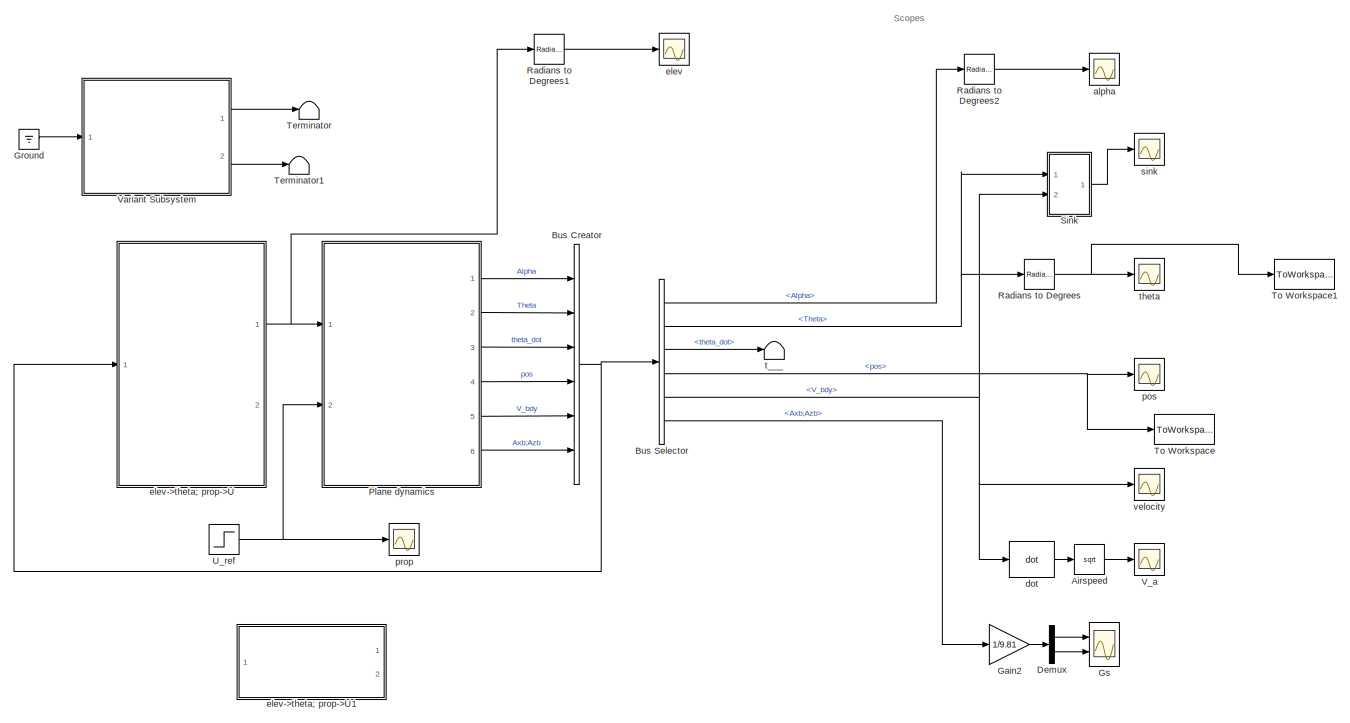
[diagram: root canvas - part 1/2, full width, middle band]
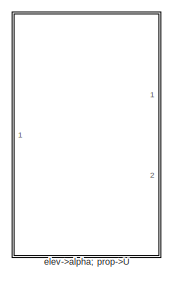
[diagram: root canvas - part 2/2, bottom left region]
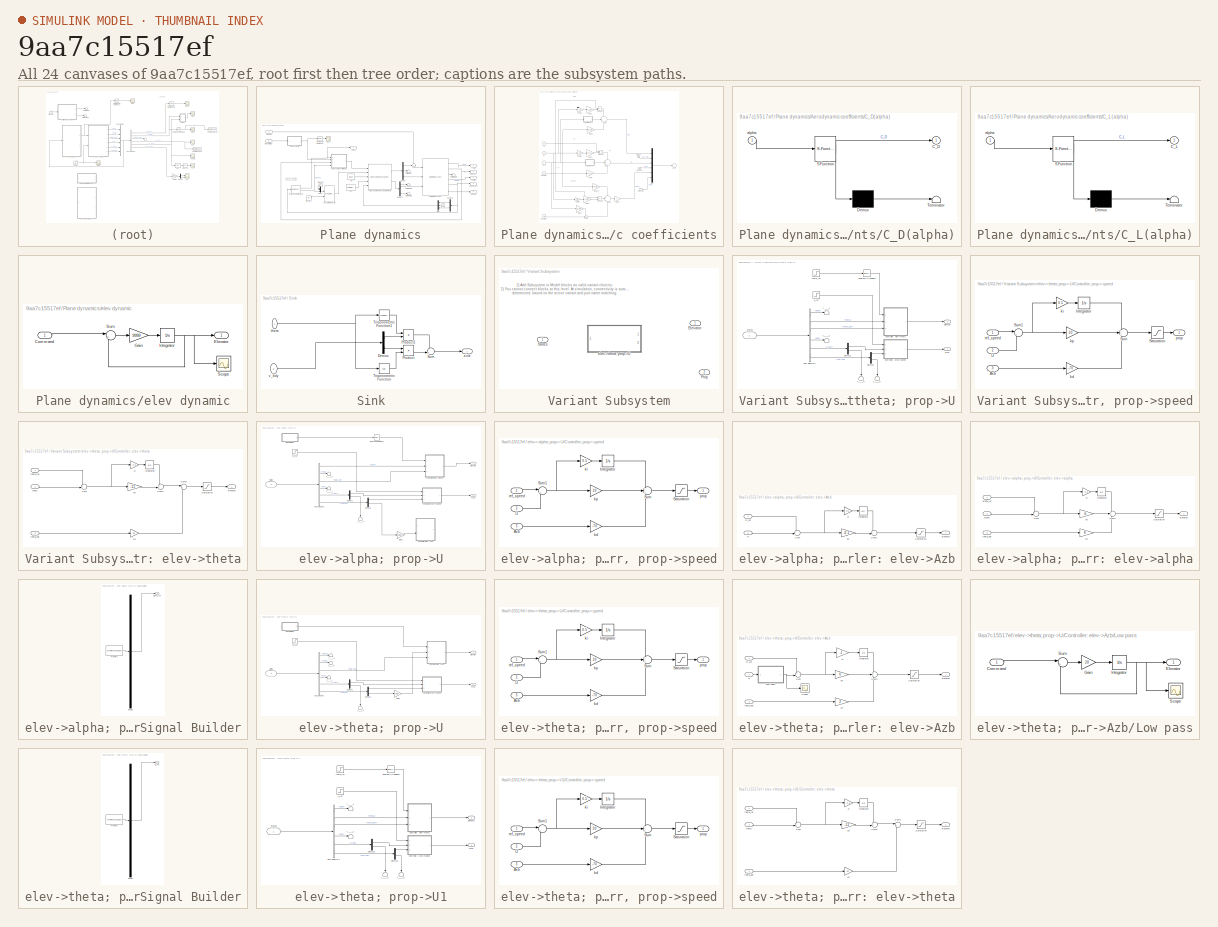
[diagram: thumbnail index - all 24 canvases of the model, root first then tree order]
MODEL slx_9aa7c15517ef
KIND model
CONFIG AbsTol = auto
CONFIG EnableMultiTasking = off
CONFIG FixedStep = auto
CONFIG MaxStep = auto
CONFIG MinStep = auto
CONFIG RelTol = 1e-3
CONFIG SampleTimeConstraint = Unconstrained
CONFIG Solver = VariableStepAuto
CONFIG SolverName = VariableStepAuto
CONFIG StartTime = 0.0
CONFIG StopTime = 25.0
BLOCK [Sqrt] Airspeed
  AlgorithmType = Newton-Raphson
BLOCK [BusCreator] Bus Creator
  DisplayOption = bar
  InheritFromInputs = on
  Inputs = 6
  Ports = [6, 1]
BLOCK [BusSelector] Bus Selector
  OutputAsBus = off
  OutputSignals = Alpha,Theta,theta_dot,pos,V_bdy,Axb;Azb
  Ports = [1, 6]
BLOCK [Demux] Demux
  DisplayOption = bar
  Outputs = 2
  Ports = [1, 2]
BLOCK [Gain] Gain2
  Gain = 1/9.81
  OutDataTypeStr = Inherit: Inherit via internal rule
  ParamDataTypeStr = Inherit: Inherit via internal rule
  SaturateOnIntegerOverflow = off
BLOCK [Ground] Ground
  Commented = on
BLOCK [Scope] Gs
  NumInputPorts = 2
  Ports = [2]
  ScopeSpecificationString = Simulink.scopes.TimeScopeBlockCfg('CurrentConfiguration', extmgr.ConfigurationSet(extmgr.Configuration('Core','General UI',true),extmgr.Configuration('Core','Source UI',true),extmgr.Configuration('Sources','WiredSimulink',true,'DataLoggingVariableName','ScopeData1'),extmgr.Configuration('Visuals','Time Domain',true,'SerializedDisplays',{struct('MinYLimReal','-0.10137','MaxYLimReal','0.39082','YLab...<+1447ch>
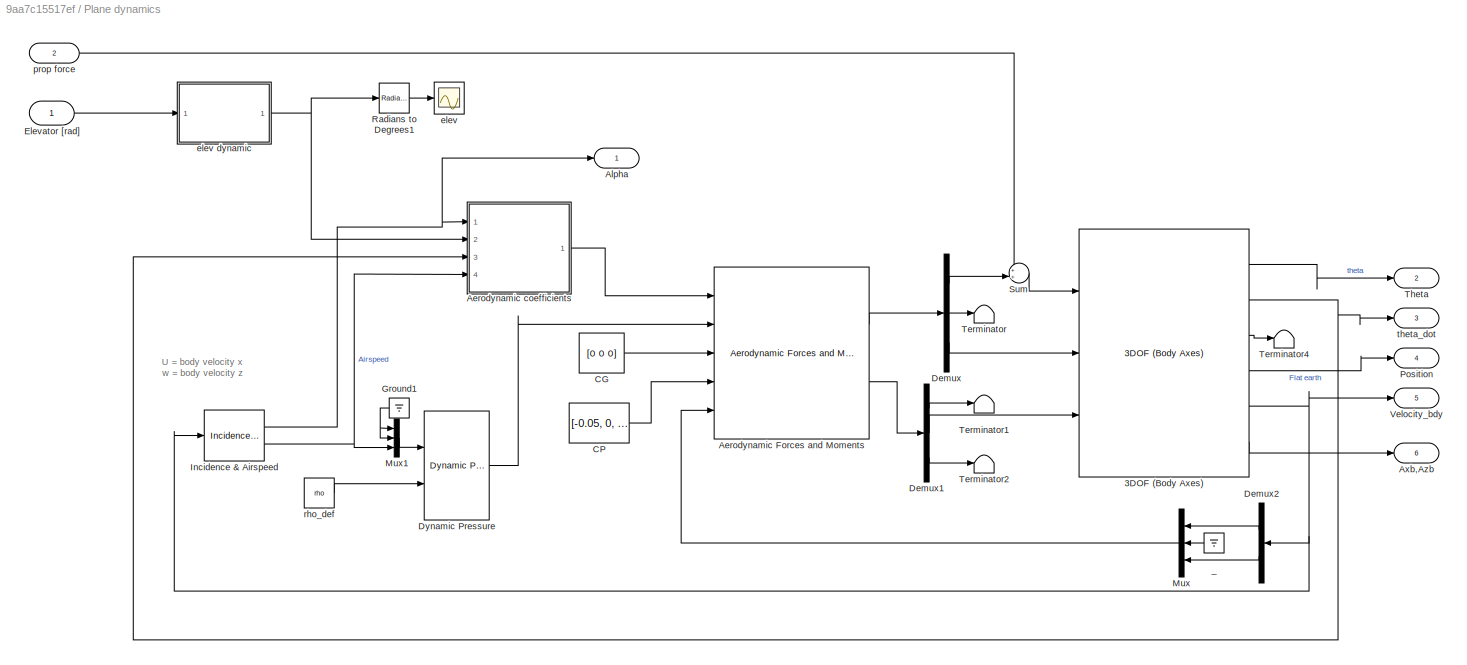
BLOCK [SubSystem] Plane dynamics
  Ports = [2, 6]
  RequestExecContextInheritance = off
  Variant = off
BLOCK [Reference] Plane dynamics/3DOF (Body Axes)  REF=shared3dof/3DOF (Body Axes)
  Ports = [3, 6]
  SourceBlock = shared3dof/3DOF (Body Axes)
  SourceType = 3DOF EoM
BLOCK [Reference] Plane dynamics/Aerodynamic Forces and Moments   REF=aerolibadyn/Aerodynamic
Forces and Moments 
  Ports = [5, 2]
  SourceBlock = aerolibadyn/Aerodynamic\nForces and Moments
  SourceProductBaseCode = AE
  SourceProductName = Aerospace Blockset
  SourceType = Aerodynamic Forces and Moments
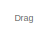
[diagram: Plane dynamics/Aerodynamic coefficients - part 1/2, top left region]
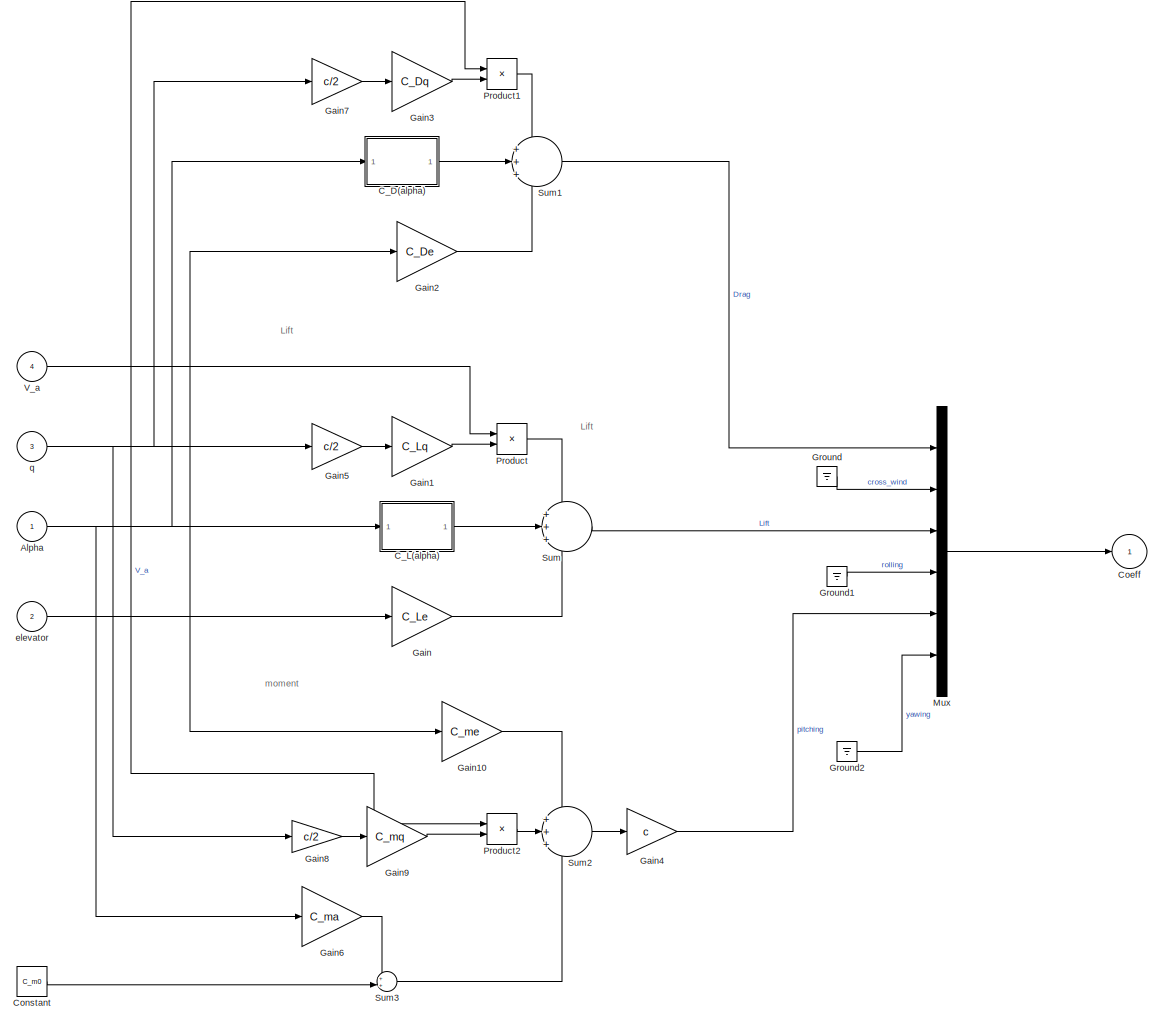
[diagram: Plane dynamics/Aerodynamic coefficients - part 2/2, most of the canvas]
BLOCK [SubSystem] Plane dynamics/Aerodynamic coefficients
  Ports = [4, 1]
  RequestExecContextInheritance = off
  Variant = off
BLOCK [Inport] Plane dynamics/Aerodynamic coefficients/Alpha
  IconDisplay = Port number
BLOCK [SubSystem] Plane dynamics/Aerodynamic coefficients/C_D(alpha)
  ErrorFcn = Stateflow.Translate.translate
  PermitHierarchicalResolution = ExplicitOnly
  Ports = [1, 1]
  RequestExecContextInheritance = off
  SFBlockType = MATLAB Function
  TreatAsAtomicUnit = on
  Variant = off
BLOCK [Demux] Plane dynamics/Aerodynamic coefficients/C_D(alpha)/ Demux 
  Outputs = 1
  Ports = [1, 1]
BLOCK [S-Function] Plane dynamics/Aerodynamic coefficients/C_D(alpha)/ SFunction 
  EnableBusSupport = on
  FunctionName = sf_sfun
  PortCounts = [1 2]
  Ports = [1, 2]
  SFcnIsStateOwnerBlock = off
  SFunctionDeploymentMode = off
  Tag = Stateflow S-Function Aerosonde_sim 1
BLOCK [Terminator] Plane dynamics/Aerodynamic coefficients/C_D(alpha)/ Terminator 
BLOCK [Outport] Plane dynamics/Aerodynamic coefficients/C_D(alpha)/C_D
  IconDisplay = Port number
BLOCK [Inport] Plane dynamics/Aerodynamic coefficients/C_D(alpha)/alpha
  IconDisplay = Port number
BLOCK [SubSystem] Plane dynamics/Aerodynamic coefficients/C_L(alpha)
  ErrorFcn = Stateflow.Translate.translate
  PermitHierarchicalResolution = ExplicitOnly
  Ports = [1, 1]
  RequestExecContextInheritance = off
  SFBlockType = MATLAB Function
  TreatAsAtomicUnit = on
  Variant = off
BLOCK [Demux] Plane dynamics/Aerodynamic coefficients/C_L(alpha)/ Demux 
  Outputs = 1
  Ports = [1, 1]
BLOCK [S-Function] Plane dynamics/Aerodynamic coefficients/C_L(alpha)/ SFunction 
  EnableBusSupport = on
  FunctionName = sf_sfun
  PortCounts = [1 2]
  Ports = [1, 2]
  SFcnIsStateOwnerBlock = off
  SFunctionDeploymentMode = off
  Tag = Stateflow S-Function Aerosonde_sim 2
BLOCK [Terminator] Plane dynamics/Aerodynamic coefficients/C_L(alpha)/ Terminator 
BLOCK [Outport] Plane dynamics/Aerodynamic coefficients/C_L(alpha)/C_L
  IconDisplay = Port number
BLOCK [Inport] Plane dynamics/Aerodynamic coefficients/C_L(alpha)/alpha
  IconDisplay = Port number
BLOCK [Outport] Plane dynamics/Aerodynamic coefficients/Coeff
  IconDisplay = Port number
BLOCK [Constant] Plane dynamics/Aerodynamic coefficients/Constant
  Value = C_m0
BLOCK [Gain] Plane dynamics/Aerodynamic coefficients/Gain
  Gain = C_Le
  OutDataTypeStr = Inherit: Inherit via internal rule
  ParamDataTypeStr = Inherit: Inherit via internal rule
  SaturateOnIntegerOverflow = off
BLOCK [Gain] Plane dynamics/Aerodynamic coefficients/Gain1
  Gain = C_Lq
  OutDataTypeStr = Inherit: Inherit via internal rule
  ParamDataTypeStr = Inherit: Inherit via internal rule
  SaturateOnIntegerOverflow = off
BLOCK [Gain] Plane dynamics/Aerodynamic coefficients/Gain10
  Gain = C_me
  OutDataTypeStr = Inherit: Inherit via internal rule
  ParamDataTypeStr = Inherit: Inherit via internal rule
  SaturateOnIntegerOverflow = off
BLOCK [Gain] Plane dynamics/Aerodynamic coefficients/Gain2
  Gain = C_De
  OutDataTypeStr = Inherit: Inherit via internal rule
  ParamDataTypeStr = Inherit: Inherit via internal rule
  SaturateOnIntegerOverflow = off
BLOCK [Gain] Plane dynamics/Aerodynamic coefficients/Gain3
  Gain = C_Dq
  OutDataTypeStr = Inherit: Inherit via internal rule
  ParamDataTypeStr = Inherit: Inherit via internal rule
  SaturateOnIntegerOverflow = off
BLOCK [Gain] Plane dynamics/Aerodynamic coefficients/Gain4
  Gain = c
  OutDataTypeStr = Inherit: Inherit via internal rule
  ParamDataTypeStr = Inherit: Inherit via internal rule
  SaturateOnIntegerOverflow = off
BLOCK [Gain] Plane dynamics/Aerodynamic coefficients/Gain5
  Gain = c/2
  OutDataTypeStr = Inherit: Inherit via internal rule
  ParamDataTypeStr = Inherit: Inherit via internal rule
  SaturateOnIntegerOverflow = off
BLOCK [Gain] Plane dynamics/Aerodynamic coefficients/Gain6
  Gain = C_ma
  OutDataTypeStr = Inherit: Inherit via internal rule
  ParamDataTypeStr = Inherit: Inherit via internal rule
  SaturateOnIntegerOverflow = off
BLOCK [Gain] Plane dynamics/Aerodynamic coefficients/Gain7
  Gain = c/2
  OutDataTypeStr = Inherit: Inherit via internal rule
  ParamDataTypeStr = Inherit: Inherit via internal rule
  SaturateOnIntegerOverflow = off
BLOCK [Gain] Plane dynamics/Aerodynamic coefficients/Gain8
  Gain = c/2
  OutDataTypeStr = Inherit: Inherit via internal rule
  ParamDataTypeStr = Inherit: Inherit via internal rule
  SaturateOnIntegerOverflow = off
BLOCK [Gain] Plane dynamics/Aerodynamic coefficients/Gain9
  Gain = C_mq
  OutDataTypeStr = Inherit: Inherit via internal rule
  ParamDataTypeStr = Inherit: Inherit via internal rule
  SaturateOnIntegerOverflow = off
BLOCK [Ground] Plane dynamics/Aerodynamic coefficients/Ground
BLOCK [Ground] Plane dynamics/Aerodynamic coefficients/Ground1
BLOCK [Ground] Plane dynamics/Aerodynamic coefficients/Ground2
BLOCK [Mux] Plane dynamics/Aerodynamic coefficients/Mux
  DisplayOption = bar
  Inputs = 6
  Ports = [6, 1]
BLOCK [Product] Plane dynamics/Aerodynamic coefficients/Product
  InputSameDT = off
  Inputs = /*
  OutDataTypeStr = Inherit: Inherit via internal rule
  Ports = [2, 1]
  RndMeth = Floor
  SaturateOnIntegerOverflow = off
BLOCK [Product] Plane dynamics/Aerodynamic coefficients/Product1
  InputSameDT = off
  Inputs = /*
  OutDataTypeStr = Inherit: Inherit via internal rule
  Ports = [2, 1]
  RndMeth = Floor
  SaturateOnIntegerOverflow = off
BLOCK [Product] Plane dynamics/Aerodynamic coefficients/Product2
  InputSameDT = off
  Inputs = /*
  OutDataTypeStr = Inherit: Inherit via internal rule
  Ports = [2, 1]
  RndMeth = Floor
  SaturateOnIntegerOverflow = off
BLOCK [Sum] Plane dynamics/Aerodynamic coefficients/Sum
  IconShape = round
  InputSameDT = off
  Inputs = +++
  OutDataTypeStr = Inherit: Inherit via internal rule
  Ports = [3, 1]
  SaturateOnIntegerOverflow = off
BLOCK [Sum] Plane dynamics/Aerodynamic coefficients/Sum1
  IconShape = round
  InputSameDT = off
  Inputs = +++
  OutDataTypeStr = Inherit: Inherit via internal rule
  Ports = [3, 1]
  SaturateOnIntegerOverflow = off
BLOCK [Sum] Plane dynamics/Aerodynamic coefficients/Sum2
  IconShape = round
  InputSameDT = off
  Inputs = +++
  OutDataTypeStr = Inherit: Inherit via internal rule
  Ports = [3, 1]
  SaturateOnIntegerOverflow = off
BLOCK [Sum] Plane dynamics/Aerodynamic coefficients/Sum3
  IconShape = round
  InputSameDT = off
  Inputs = ++|
  OutDataTypeStr = Inherit: Inherit via internal rule
  Ports = [2, 1]
  SaturateOnIntegerOverflow = off
BLOCK [Inport] Plane dynamics/Aerodynamic coefficients/V_a
  IconDisplay = Port number
  Port = 4
BLOCK [Inport] Plane dynamics/Aerodynamic coefficients/elevator
  IconDisplay = Port number
  Port = 2
BLOCK [Inport] Plane dynamics/Aerodynamic coefficients/q
  IconDisplay = Port number
  Port = 3
BLOCK [Outport] Plane dynamics/Alpha
  IconDisplay = Port number
BLOCK [Outport] Plane dynamics/Axb,Azb
  IconDisplay = Port number
  Port = 6
BLOCK [Constant] Plane dynamics/CG
  Value = [0 0 0]
BLOCK [Constant] Plane dynamics/CP
  Value = [-0.05, 0, 0]
BLOCK [Demux] Plane dynamics/Demux
  DisplayOption = bar
  Outputs = 3
  Ports = [1, 3]
BLOCK [Demux] Plane dynamics/Demux1
  DisplayOption = bar
  Outputs = 3
  Ports = [1, 3]
BLOCK [Demux] Plane dynamics/Demux2
  DisplayOption = bar
  Outputs = 2
  Ports = [1, 2]
BLOCK [Reference] Plane dynamics/Dynamic Pressure  REF=aerolibasang/Dynamic Pressure
  Ports = [2, 1]
  SourceBlock = aerolibasang/Dynamic Pressure
  SourceProductBaseCode = AE
  SourceProductName = Aerospace Blockset
  SourceType = Dynamic Pressure
BLOCK [Inport] Plane dynamics/Elevator [rad]
  IconDisplay = Port number
BLOCK [Ground] Plane dynamics/Ground1
BLOCK [Reference] Plane dynamics/Incidence & Airspeed  REF=aerolibasang/Incidence 
& Airspeed
  Ports = [1, 2]
  SourceBlock = aerolibasang/Incidence \n& Airspeed
  SourceProductBaseCode = AE
  SourceProductName = Aerospace Blockset
  SourceType = Incidence&Airspeed
BLOCK [Mux] Plane dynamics/Mux
  DisplayOption = bar
  Inputs = 3
  Ports = [3, 1]
BLOCK [Mux] Plane dynamics/Mux1
  DisplayOption = bar
  Inputs = 3
  Ports = [3, 1]
BLOCK [Outport] Plane dynamics/Position
  IconDisplay = Port number
  Port = 4
BLOCK [Reference] Plane dynamics/Radians to Degrees1  REF=simulink_extras/Transformations/Radians
to Degrees
  Ports = [1, 1]
  SourceBlock = simulink_extras/Transformations/Radians\nto Degrees
  SourceProductBaseCode = SL
  SourceProductName = Simulink
  SourceType = RadiansToDegrees
BLOCK [Sum] Plane dynamics/Sum
  IconShape = round
  InputSameDT = off
  Inputs = ++|
  OutDataTypeStr = Inherit: Inherit via internal rule
  Ports = [2, 1]
  SaturateOnIntegerOverflow = off
BLOCK [Terminator] Plane dynamics/Terminator
BLOCK [Terminator] Plane dynamics/Terminator1
BLOCK [Terminator] Plane dynamics/Terminator2
BLOCK [Terminator] Plane dynamics/Terminator4
BLOCK [Outport] Plane dynamics/Theta
  IconDisplay = Port number
  Port = 2
BLOCK [Outport] Plane dynamics/Velocity_bdy
  IconDisplay = Port number
  Port = 5
BLOCK [Ground] Plane dynamics/_
BLOCK [Scope] Plane dynamics/elev
  NumInputPorts = 1
  Ports = [1]
  ScopeSpecificationString = Simulink.scopes.TimeScopeBlockCfg('CurrentConfiguration', extmgr.ConfigurationSet(extmgr.Configuration('Core','General UI',true),extmgr.Configuration('Core','Source UI',true),extmgr.Configuration('Sources','WiredSimulink',true,'DataLoggingVariableName','ScopeData5'),extmgr.Configuration('Visuals','Time Domain',true,'SerializedDisplays',{struct('MinYLimReal','-36.57308','MaxYLimReal','84.06368','YL...<+1433ch>
BLOCK [SubSystem] Plane dynamics/elev dynamic
  Commented = through
  Ports = [1, 1]
  RequestExecContextInheritance = off
  Variant = off
BLOCK [Inport] Plane dynamics/elev dynamic/Command
  IconDisplay = Port number
BLOCK [Outport] Plane dynamics/elev dynamic/Elevator
  IconDisplay = Port number
BLOCK [Gain] Plane dynamics/elev dynamic/Gain
  Gain = 9999
  OutDataTypeStr = Inherit: Inherit via internal rule
  ParamDataTypeStr = Inherit: Inherit via internal rule
  SaturateOnIntegerOverflow = off
BLOCK [Integrator] Plane dynamics/elev dynamic/Integrator
  Ports = [1, 1]
BLOCK [Scope] Plane dynamics/elev dynamic/Scope
  NumInputPorts = 1
  Ports = [1]
  ScopeSpecificationString = Simulink.scopes.TimeScopeBlockCfg('CurrentConfiguration', extmgr.ConfigurationSet(extmgr.Configuration('Core','General UI',true),extmgr.Configuration('Core','Source UI',true),extmgr.Configuration('Sources','WiredSimulink',true,'DataLoggingVariableName','ScopeData6'),extmgr.Configuration('Visuals','Time Domain',true,'SerializedDisplays',{struct('MinYLimReal','-0.125','MaxYLimReal','1.125','YLabelRe...<+1430ch>
BLOCK [Sum] Plane dynamics/elev dynamic/Sum
  IconShape = round
  InputSameDT = off
  Inputs = |+-
  OutDataTypeStr = Inherit: Inherit via internal rule
  Ports = [2, 1]
  SaturateOnIntegerOverflow = off
BLOCK [Inport] Plane dynamics/prop force
  IconDisplay = Port number
  Port = 2
BLOCK [Constant] Plane dynamics/rho_def
  Value = rho
BLOCK [Outport] Plane dynamics/theta_dot
  IconDisplay = Port number
  Port = 3
BLOCK [Reference] Radians to Degrees  REF=simulink_extras/Transformations/Radians
to Degrees
  Ports = [1, 1]
  SourceBlock = simulink_extras/Transformations/Radians\nto Degrees
  SourceProductBaseCode = SL
  SourceProductName = Simulink
  SourceType = RadiansToDegrees
BLOCK [Reference] Radians to Degrees1  REF=simulink_extras/Transformations/Radians
to Degrees
  Ports = [1, 1]
  SourceBlock = simulink_extras/Transformations/Radians\nto Degrees
  SourceProductBaseCode = SL
  SourceProductName = Simulink
  SourceType = RadiansToDegrees
BLOCK [Reference] Radians to Degrees2  REF=simulink_extras/Transformations/Radians
to Degrees
  Ports = [1, 1]
  SourceBlock = simulink_extras/Transformations/Radians\nto Degrees
  SourceProductBaseCode = SL
  SourceProductName = Simulink
  SourceType = RadiansToDegrees
BLOCK [SubSystem] Sink
  Ports = [2, 1]
  RequestExecContextInheritance = off
  Variant = off
BLOCK [Demux] Sink/Demux
  DisplayOption = bar
  Outputs = 2
  Ports = [1, 2]
BLOCK [Product] Sink/Product
  InputSameDT = off
  OutDataTypeStr = Inherit: Inherit via internal rule
  Ports = [2, 1]
  RndMeth = Floor
  SaturateOnIntegerOverflow = off
BLOCK [Product] Sink/Product1
  InputSameDT = off
  OutDataTypeStr = Inherit: Inherit via internal rule
  Ports = [2, 1]
  RndMeth = Floor
  SaturateOnIntegerOverflow = off
BLOCK [Sum] Sink/Sum
  IconShape = round
  InputSameDT = off
  Inputs = -+|
  OutDataTypeStr = Inherit: Inherit via internal rule
  Ports = [2, 1]
  SaturateOnIntegerOverflow = off
BLOCK [Trigonometry] Sink/Trigonometric Function
  Operator = cos
  Ports = [1, 1]
BLOCK [Trigonometry] Sink/Trigonometric Function1
  Ports = [1, 1]
BLOCK [Outport] Sink/sink
  IconDisplay = Port number
BLOCK [Inport] Sink/theta
  IconDisplay = Port number
BLOCK [Inport] Sink/v_bdy
  IconDisplay = Port number
  Port = 2
BLOCK [Terminator] Terminator
  Commented = on
BLOCK [Terminator] Terminator1
  Commented = on
BLOCK [ToWorkspace] To Workspace
  FixptAsFi = on
  MaxDataPoints = inf
  Ports = [1]
  SampleTime = -1
  Save2DSignal = 3-D array (concatenate along third dimension)
  SaveFormat = Timeseries
  VariableName = pos
BLOCK [ToWorkspace] To Workspace1
  FixptAsFi = on
  MaxDataPoints = inf
  Ports = [1]
  SampleTime = -1
  Save2DSignal = 3-D array (concatenate along third dimension)
  SaveFormat = Timeseries
  VariableName = theta
BLOCK [Step] U_ref
  After = 5
  Before = 10
  SampleTime = 0
  Time = 10.5
BLOCK [Scope] V_a
  NumInputPorts = 1
  Ports = [1]
  ScopeSpecificationString = Simulink.scopes.TimeScopeBlockCfg('CurrentConfiguration', extmgr.ConfigurationSet(extmgr.Configuration('Core','General UI',true),extmgr.Configuration('Core','Source UI',true),extmgr.Configuration('Sources','WiredSimulink',true,'DataLoggingVariableName','ScopeData1'),extmgr.Configuration('Visuals','Time Domain',true,'SerializedDisplays',{struct('MinYLimReal','-0.37126','MaxYLimReal','56.00727','YLa...<+1444ch>
BLOCK [SubSystem] Variant Subsystem
  Commented = on
  OverrideUsingVariant = (default)
  Ports = [1, 2]
  RequestExecContextInheritance = off
  Variant = on
BLOCK [Outport] Variant Subsystem/Elevator
  IconDisplay = Port number
BLOCK [Outport] Variant Subsystem/Prop
  IconDisplay = Port number
  Port = 2
BLOCK [Inport] Variant Subsystem/States
  IconDisplay = Port number
BLOCK [SubSystem] Variant Subsystem/elev->theta; prop->U
  Ports = [1, 2]
  RequestExecContextInheritance = off
  Variant = off
  VariantControl = (default)
BLOCK [BusSelector] Variant Subsystem/elev->theta; prop->U/Bus Selector1
  OutputAsBus = off
  OutputSignals = Alpha,Theta,theta_dot,pos,V_bdy,Axb;Azb
  Ports = [1, 6]
BLOCK [SubSystem] Variant Subsystem/elev->theta; prop->U/Controller, prop->speed
  Ports = [3, 1]
  RequestExecContextInheritance = off
  Variant = off
BLOCK [Inport] Variant Subsystem/elev->theta; prop->U/Controller, prop->speed/Axb
  IconDisplay = Port number
  Port = 3
BLOCK [Integrator] Variant Subsystem/elev->theta; prop->U/Controller, prop->speed/Integrator
  Ports = [1, 1]
BLOCK [Saturate] Variant Subsystem/elev->theta; prop->U/Controller, prop->speed/Saturation
  InputPortMap = u0
  LowerLimit = -80
  Ports = [1, 1]
  UpperLimit = 80*1
BLOCK [Sum] Variant Subsystem/elev->theta; prop->U/Controller, prop->speed/Sum
  IconShape = round
  InputSameDT = off
  Inputs = +++
  OutDataTypeStr = Inherit: Inherit via internal rule
  Ports = [3, 1]
  SaturateOnIntegerOverflow = off
BLOCK [Sum] Variant Subsystem/elev->theta; prop->U/Controller, prop->speed/Sum1
  IconShape = round
  InputSameDT = off
  Inputs = |+-
  OutDataTypeStr = Inherit: Inherit via internal rule
  Ports = [2, 1]
  SaturateOnIntegerOverflow = off
BLOCK [Inport] Variant Subsystem/elev->theta; prop->U/Controller, prop->speed/U
  IconDisplay = Port number
  Port = 2
BLOCK [Gain] Variant Subsystem/elev->theta; prop->U/Controller, prop->speed/kd
  Gain = -70
  OutDataTypeStr = Inherit: Inherit via internal rule
  ParamDataTypeStr = Inherit: Inherit via internal rule
  SaturateOnIntegerOverflow = off
BLOCK [Gain] Variant Subsystem/elev->theta; prop->U/Controller, prop->speed/ki
  Gain = 0.5
  OutDataTypeStr = Inherit: Inherit via internal rule
  ParamDataTypeStr = Inherit: Inherit via internal rule
  SaturateOnIntegerOverflow = off
BLOCK [Gain] Variant Subsystem/elev->theta; prop->U/Controller, prop->speed/kp
  Gain = 20
  OutDataTypeStr = Inherit: Inherit via internal rule
  ParamDataTypeStr = Inherit: Inherit via internal rule
  SaturateOnIntegerOverflow = off
BLOCK [Outport] Variant Subsystem/elev->theta; prop->U/Controller, prop->speed/prop
  IconDisplay = Port number
BLOCK [Inport] Variant Subsystem/elev->theta; prop->U/Controller, prop->speed/ref_speed
  IconDisplay = Port number
BLOCK [SubSystem] Variant Subsystem/elev->theta; prop->U/Controller: elev->theta
  Ports = [3, 1]
  RequestExecContextInheritance = off
  Variant = off
BLOCK [Integrator] Variant Subsystem/elev->theta; prop->U/Controller: elev->theta/Integrator
  Ports = [1, 1]
BLOCK [Saturate] Variant Subsystem/elev->theta; prop->U/Controller: elev->theta/Saturation
  InputPortMap = u0
  LowerLimit = -2*pi/5
  Ports = [1, 1]
  UpperLimit = 2*pi/5
BLOCK [Sum] Variant Subsystem/elev->theta; prop->U/Controller: elev->theta/Sum
  IconShape = round
  InputSameDT = off
  Inputs = +-|
  OutDataTypeStr = Inherit: Inherit via internal rule
  Ports = [2, 1]
  SaturateOnIntegerOverflow = off
BLOCK [Sum] Variant Subsystem/elev->theta; prop->U/Controller: elev->theta/Sum1
  IconShape = round
  InputSameDT = off
  Inputs = ++|
  OutDataTypeStr = Inherit: Inherit via internal rule
  Ports = [2, 1]
  SaturateOnIntegerOverflow = off
BLOCK [Sum] Variant Subsystem/elev->theta; prop->U/Controller: elev->theta/Sum2
  IconShape = round
  InputSameDT = off
  Inputs = |++
  OutDataTypeStr = Inherit: Inherit via internal rule
  Ports = [2, 1]
  SaturateOnIntegerOverflow = off
BLOCK [Outport] Variant Subsystem/elev->theta; prop->U/Controller: elev->theta/elevator
  IconDisplay = Port number
BLOCK [Gain] Variant Subsystem/elev->theta; prop->U/Controller: elev->theta/kd
  Gain = 50
  OutDataTypeStr = Inherit: Inherit via internal rule
  ParamDataTypeStr = Inherit: Inherit via internal rule
  SaturateOnIntegerOverflow = off
BLOCK [Gain] Variant Subsystem/elev->theta; prop->U/Controller: elev->theta/ki
  Gain = -0.3
  OutDataTypeStr = Inherit: Inherit via internal rule
  ParamDataTypeStr = Inherit: Inherit via internal rule
  SaturateOnIntegerOverflow = off
BLOCK [Gain] Variant Subsystem/elev->theta; prop->U/Controller: elev->theta/kp
  Gain = -12
  OutDataTypeStr = Inherit: Inherit via internal rule
  ParamDataTypeStr = Inherit: Inherit via internal rule
  SaturateOnIntegerOverflow = off
BLOCK [Inport] Variant Subsystem/elev->theta; prop->U/Controller: elev->theta/theta
  IconDisplay = Port number
  Port = 2
BLOCK [Inport] Variant Subsystem/elev->theta; prop->U/Controller: elev->theta/theta_dot
  IconDisplay = Port number
  Port = 3
BLOCK [Inport] Variant Subsystem/elev->theta; prop->U/Controller: elev->theta/theta_ref
  IconDisplay = Port number
BLOCK [Reference] Variant Subsystem/elev->theta; prop->U/Degrees to Radians  REF=simulink_extras/Transformations/Degrees to
Radians
  Ports = [1, 1]
  SourceBlock = simulink_extras/Transformations/Degrees to\nRadians
  SourceProductBaseCode = SL
  SourceProductName = Simulink
  SourceType = DegreesToRadians
BLOCK [Demux] Variant Subsystem/elev->theta; prop->U/Demux1
  DisplayOption = bar
  Outputs = 2
  Ports = [1, 2]
BLOCK [Demux] Variant Subsystem/elev->theta; prop->U/Demux2
  DisplayOption = bar
  Outputs = 2
  Ports = [1, 2]
BLOCK [Outport] Variant Subsystem/elev->theta; prop->U/Elevator
  IconDisplay = Port number
BLOCK [Outport] Variant Subsystem/elev->theta; prop->U/Prop
  IconDisplay = Port number
  Port = 2
BLOCK [Inport] Variant Subsystem/elev->theta; prop->U/States
  IconDisplay = Port number
BLOCK [Step] Variant Subsystem/elev->theta; prop->U/U_ref
  After = 30
  Before = 20
  SampleTime = 0
  Time = 150
BLOCK [Terminator] Variant Subsystem/elev->theta; prop->U/t_____1
BLOCK [Terminator] Variant Subsystem/elev->theta; prop->U/t_____2
BLOCK [Terminator] Variant Subsystem/elev->theta; prop->U/t_____3
BLOCK [Terminator] Variant Subsystem/elev->theta; prop->U/t_____4
BLOCK [Step] Variant Subsystem/elev->theta; prop->U/theta_ref
  After = 60
  SampleTime = 0
  Time = 180
BLOCK [Scope] alpha
  NumInputPorts = 1
  Ports = [1]
  ScopeSpecificationString = Simulink.scopes.TimeScopeBlockCfg('CurrentConfiguration', extmgr.ConfigurationSet(extmgr.Configuration('Core','General UI',true),extmgr.Configuration('Core','Source UI',true),extmgr.Configuration('Sources','WiredSimulink',true,'DataLoggingVariableName','ScopeData2'),extmgr.Configuration('Visuals','Time Domain',true,'SerializedDisplays',{struct('MinYLimReal','-26.83681','MaxYLimReal','6.38643','YLa...<+1481ch>
BLOCK [Reference] dot  REF=aerolibasang/Incidence 
& Airspeed/dot
  Ports = [1, 1]
  SourceBlock = aerolibasang/Incidence \n& Airspeed/dot
  SourceProductBaseCode = AE
  SourceProductName = Aerospace Blockset
  SourceType = SubSystem
BLOCK [Scope] elev
  NumInputPorts = 1
  Ports = [1]
  ScopeSpecificationString = Simulink.scopes.TimeScopeBlockCfg('CurrentConfiguration', extmgr.ConfigurationSet(extmgr.Configuration('Core','General UI',true),extmgr.Configuration('Core','Source UI',true),extmgr.Configuration('Sources','WiredSimulink',true,'DataLoggingVariableName','ScopeData2'),extmgr.Configuration('Visuals','Time Domain',true,'SerializedDisplays',{struct('MinYLimReal','-23.84858','MaxYLimReal','-0.00000','YL...<+1456ch>
BLOCK [SubSystem] elev->alpha; prop->U
  Commented = on
  Ports = [1, 2]
  RequestExecContextInheritance = off
  Variant = off
  VariantControl = Variant
BLOCK [BusSelector] elev->alpha; prop->U/Bus Selector1
  OutputAsBus = off
  OutputSignals = Alpha,Theta,theta_dot,pos,V_bdy,Axb;Azb
  Ports = [1, 6]
BLOCK [SubSystem] elev->alpha; prop->U/Controller, prop->speed
  Ports = [3, 1]
  RequestExecContextInheritance = off
  Variant = off
BLOCK [Inport] elev->alpha; prop->U/Controller, prop->speed/Axb
  IconDisplay = Port number
  Port = 3
BLOCK [Integrator] elev->alpha; prop->U/Controller, prop->speed/Integrator
  Ports = [1, 1]
BLOCK [Saturate] elev->alpha; prop->U/Controller, prop->speed/Saturation
  InputPortMap = u0
  LowerLimit = -80
  Ports = [1, 1]
  UpperLimit = 80*1
BLOCK [Sum] elev->alpha; prop->U/Controller, prop->speed/Sum
  IconShape = round
  InputSameDT = off
  Inputs = +++
  OutDataTypeStr = Inherit: Inherit via internal rule
  Ports = [3, 1]
  SaturateOnIntegerOverflow = off
BLOCK [Sum] elev->alpha; prop->U/Controller, prop->speed/Sum1
  IconShape = round
  InputSameDT = off
  Inputs = |+-
  OutDataTypeStr = Inherit: Inherit via internal rule
  Ports = [2, 1]
  SaturateOnIntegerOverflow = off
BLOCK [Inport] elev->alpha; prop->U/Controller, prop->speed/U
  IconDisplay = Port number
  Port = 2
BLOCK [Gain] elev->alpha; prop->U/Controller, prop->speed/kd
  Gain = -70
  OutDataTypeStr = Inherit: Inherit via internal rule
  ParamDataTypeStr = Inherit: Inherit via internal rule
  SaturateOnIntegerOverflow = off
BLOCK [Gain] elev->alpha; prop->U/Controller, prop->speed/ki
  Gain = 0.5
  OutDataTypeStr = Inherit: Inherit via internal rule
  ParamDataTypeStr = Inherit: Inherit via internal rule
  SaturateOnIntegerOverflow = off
BLOCK [Gain] elev->alpha; prop->U/Controller, prop->speed/kp
  Gain = 20
  OutDataTypeStr = Inherit: Inherit via internal rule
  ParamDataTypeStr = Inherit: Inherit via internal rule
  SaturateOnIntegerOverflow = off
BLOCK [Outport] elev->alpha; prop->U/Controller, prop->speed/prop
  IconDisplay = Port number
BLOCK [Inport] elev->alpha; prop->U/Controller, prop->speed/ref_speed
  IconDisplay = Port number
BLOCK [SubSystem] elev->alpha; prop->U/Controller: elev->Azb
  Commented = on
  Ports = [2, 1]
  RequestExecContextInheritance = off
  Variant = off
BLOCK [Inport] elev->alpha; prop->U/Controller: elev->Azb/G
  IconDisplay = Port number
  Port = 2
BLOCK [Inport] elev->alpha; prop->U/Controller: elev->Azb/G_ref
  IconDisplay = Port number
BLOCK [Integrator] elev->alpha; prop->U/Controller: elev->Azb/Integrator
  Ports = [1, 1]
BLOCK [Saturate] elev->alpha; prop->U/Controller: elev->Azb/Saturation
  InputPortMap = u0
  LowerLimit = -2*pi/5
  Ports = [1, 1]
  UpperLimit = 2*pi/5
BLOCK [Sum] elev->alpha; prop->U/Controller: elev->Azb/Sum
  IconShape = round
  InputSameDT = off
  Inputs = +-|
  OutDataTypeStr = Inherit: Inherit via internal rule
  Ports = [2, 1]
  SaturateOnIntegerOverflow = off
BLOCK [Sum] elev->alpha; prop->U/Controller: elev->Azb/Sum1
  IconShape = round
  InputSameDT = off
  Inputs = ++|
  OutDataTypeStr = Inherit: Inherit via internal rule
  Ports = [2, 1]
  SaturateOnIntegerOverflow = off
BLOCK [Outport] elev->alpha; prop->U/Controller: elev->Azb/elevator
  IconDisplay = Port number
BLOCK [Gain] elev->alpha; prop->U/Controller: elev->Azb/ki
  Gain = -0.5
  OutDataTypeStr = Inherit: Inherit via internal rule
  ParamDataTypeStr = Inherit: Inherit via internal rule
  SaturateOnIntegerOverflow = off
BLOCK [Gain] elev->alpha; prop->U/Controller: elev->Azb/kp
  Gain = -0.1
  OutDataTypeStr = Inherit: Inherit via internal rule
  ParamDataTypeStr = Inherit: Inherit via internal rule
  SaturateOnIntegerOverflow = off
BLOCK [SubSystem] elev->alpha; prop->U/Controller: elev->alpha
  Ports = [3, 1]
  RequestExecContextInheritance = off
  Variant = off
BLOCK [Integrator] elev->alpha; prop->U/Controller: elev->alpha/Integrator
  Ports = [1, 1]
BLOCK [Saturate] elev->alpha; prop->U/Controller: elev->alpha/Saturation
  InputPortMap = u0
  LowerLimit = -2*pi/5
  Ports = [1, 1]
  UpperLimit = 2*pi/5
BLOCK [Sum] elev->alpha; prop->U/Controller: elev->alpha/Sum
  IconShape = round
  InputSameDT = off
  Inputs = +-|
  OutDataTypeStr = Inherit: Inherit via internal rule
  Ports = [2, 1]
  SaturateOnIntegerOverflow = off
BLOCK [Sum] elev->alpha; prop->U/Controller: elev->alpha/Sum1
  IconShape = round
  InputSameDT = off
  Inputs = +++
  OutDataTypeStr = Inherit: Inherit via internal rule
  Ports = [3, 1]
  SaturateOnIntegerOverflow = off
BLOCK [Inport] elev->alpha; prop->U/Controller: elev->alpha/alpha
  IconDisplay = Port number
  Port = 2
BLOCK [Inport] elev->alpha; prop->U/Controller: elev->alpha/alpha_ref
  IconDisplay = Port number
BLOCK [Outport] elev->alpha; prop->U/Controller: elev->alpha/elevator
  IconDisplay = Port number
BLOCK [Gain] elev->alpha; prop->U/Controller: elev->alpha/kd 
  OutDataTypeStr = Inherit: Inherit via internal rule
  ParamDataTypeStr = Inherit: Inherit via internal rule
  SaturateOnIntegerOverflow = off
BLOCK [Gain] elev->alpha; prop->U/Controller: elev->alpha/ki
  Gain = -0.3
  OutDataTypeStr = Inherit: Inherit via internal rule
  ParamDataTypeStr = Inherit: Inherit via internal rule
  SaturateOnIntegerOverflow = off
BLOCK [Gain] elev->alpha; prop->U/Controller: elev->alpha/kp
  Gain = -6
  OutDataTypeStr = Inherit: Inherit via internal rule
  ParamDataTypeStr = Inherit: Inherit via internal rule
  SaturateOnIntegerOverflow = off
BLOCK [Inport] elev->alpha; prop->U/Controller: elev->alpha/theta_dot
  IconDisplay = Port number
  Port = 3
BLOCK [Reference] elev->alpha; prop->U/Degrees to Radians  REF=simulink_extras/Transformations/Degrees to
Radians
  Ports = [1, 1]
  SourceBlock = simulink_extras/Transformations/Degrees to\nRadians
  SourceProductBaseCode = SL
  SourceProductName = Simulink
  SourceType = DegreesToRadians
BLOCK [Demux] elev->alpha; prop->U/Demux1
  DisplayOption = bar
  Outputs = 2
  Ports = [1, 2]
BLOCK [Demux] elev->alpha; prop->U/Demux2
  DisplayOption = bar
  Outputs = 2
  Ports = [1, 2]
BLOCK [Outport] elev->alpha; prop->U/Elevator
  IconDisplay = Port number
BLOCK [Gain] elev->alpha; prop->U/Gain1
  Gain = 1/9.81
  OutDataTypeStr = Inherit: Inherit via internal rule
  ParamDataTypeStr = Inherit: Inherit via internal rule
  SaturateOnIntegerOverflow = off
BLOCK [Outport] elev->alpha; prop->U/Prop
  IconDisplay = Port number
  Port = 2
BLOCK [SubSystem] elev->alpha; prop->U/Signal Builder
  ClipboardFcn = sigbuilder_block('clipboard');
  CloseFcn = sigbuilder_block('close');
  ContinueFcn = sigbuilder_block('continue');
  CopyFcn = sigbuilder_block('copy');
  DeleteFcn = sigbuilder_block('delete');
  LoadFcn = sigbuilder_block('load');
  MaskHideContents = on
  ModelCloseFcn = sigbuilder_block('modelClose');
  NameChangeFcn = sigbuilder_block('namechange');
  OpenFcn = sigbuilder_block('open',[254.25 194.25 787.5 402 ]);
  PauseFcn = sigbuilder_block('pause');
  Ports = [0, 1]
  PreSaveFcn = sigbuilder_block('preSave');
  RequestExecContextInheritance = off
  StartFcn = sigbuilder_block('start');
  StopFcn = sigbuilder_block('stop');
  Tag = STV Subsys
  Variant = off
BLOCK [Demux] elev->alpha; prop->U/Signal Builder/Demux
  Outputs = 1
  Ports = [1, 1]
  Tag = STV Demux
BLOCK [FromWorkspace] elev->alpha; prop->U/Signal Builder/FromWs
  SampleTime = 0
  Tag = STV FromWs
  VariableName = tuvar
  ZeroCross = on
BLOCK [Outport] elev->alpha; prop->U/Signal Builder/alpha_ref
  IconDisplay = Port number
  Tag = STV Outport
BLOCK [Inport] elev->alpha; prop->U/States
  IconDisplay = Port number
BLOCK [Step] elev->alpha; prop->U/U_ref
  After = 25
  Before = 25
  SampleTime = 0
  Time = 150
BLOCK [Terminator] elev->alpha; prop->U/t_____1
BLOCK [Terminator] elev->alpha; prop->U/t_____2
BLOCK [Terminator] elev->alpha; prop->U/t_____4
BLOCK [SubSystem] elev->theta; prop->U
  Ports = [1, 2]
  RequestExecContextInheritance = off
  Variant = off
  VariantControl = Variant
BLOCK [BusSelector] elev->theta; prop->U/Bus Selector1
  OutputAsBus = off
  OutputSignals = Alpha,Theta,theta_dot,pos,V_bdy,Axb;Azb
  Ports = [1, 6]
BLOCK [SubSystem] elev->theta; prop->U/Controller, prop->speed
  Ports = [3, 1]
  RequestExecContextInheritance = off
  Variant = off
BLOCK [Inport] elev->theta; prop->U/Controller, prop->speed/Axb
  IconDisplay = Port number
  Port = 3
BLOCK [Integrator] elev->theta; prop->U/Controller, prop->speed/Integrator
  Ports = [1, 1]
BLOCK [Saturate] elev->theta; prop->U/Controller, prop->speed/Saturation
  InputPortMap = u0
  LowerLimit = -80
  Ports = [1, 1]
  UpperLimit = 80*1
BLOCK [Sum] elev->theta; prop->U/Controller, prop->speed/Sum
  IconShape = round
  InputSameDT = off
  Inputs = +++
  OutDataTypeStr = Inherit: Inherit via internal rule
  Ports = [3, 1]
  SaturateOnIntegerOverflow = off
BLOCK [Sum] elev->theta; prop->U/Controller, prop->speed/Sum1
  IconShape = round
  InputSameDT = off
  Inputs = |+-
  OutDataTypeStr = Inherit: Inherit via internal rule
  Ports = [2, 1]
  SaturateOnIntegerOverflow = off
BLOCK [Inport] elev->theta; prop->U/Controller, prop->speed/U
  IconDisplay = Port number
  Port = 2
BLOCK [Gain] elev->theta; prop->U/Controller, prop->speed/kd
  Gain = -70
  OutDataTypeStr = Inherit: Inherit via internal rule
  ParamDataTypeStr = Inherit: Inherit via internal rule
  SaturateOnIntegerOverflow = off
BLOCK [Gain] elev->theta; prop->U/Controller, prop->speed/ki
  Gain = 0.5
  OutDataTypeStr = Inherit: Inherit via internal rule
  ParamDataTypeStr = Inherit: Inherit via internal rule
  SaturateOnIntegerOverflow = off
BLOCK [Gain] elev->theta; prop->U/Controller, prop->speed/kp
  Gain = 20
  OutDataTypeStr = Inherit: Inherit via internal rule
  ParamDataTypeStr = Inherit: Inherit via internal rule
  SaturateOnIntegerOverflow = off
BLOCK [Outport] elev->theta; prop->U/Controller, prop->speed/prop
  IconDisplay = Port number
BLOCK [Inport] elev->theta; prop->U/Controller, prop->speed/ref_speed
  IconDisplay = Port number
BLOCK [SubSystem] elev->theta; prop->U/Controller: elev->Azb
  Ports = [3, 1]
  RequestExecContextInheritance = off
  Variant = off
BLOCK [Inport] elev->theta; prop->U/Controller: elev->Azb/G
  IconDisplay = Port number
  Port = 2
BLOCK [Inport] elev->theta; prop->U/Controller: elev->Azb/G_ref
  IconDisplay = Port number
BLOCK [Integrator] elev->theta; prop->U/Controller: elev->Azb/Integrator
  LimitOutput = on
  LowerSaturationLimit = -75*pi/180
  Ports = [1, 1]
  UpperSaturationLimit = 75*pi/180
BLOCK [SubSystem] elev->theta; prop->U/Controller: elev->Azb/Low pass
  Commented = through
  Ports = [1, 1]
  RequestExecContextInheritance = off
  Variant = off
BLOCK [Inport] elev->theta; prop->U/Controller: elev->Azb/Low pass/Command
  IconDisplay = Port number
BLOCK [Outport] elev->theta; prop->U/Controller: elev->Azb/Low pass/Elevator
  IconDisplay = Port number
BLOCK [Gain] elev->theta; prop->U/Controller: elev->Azb/Low pass/Gain
  Gain = 20
  OutDataTypeStr = Inherit: Inherit via internal rule
  ParamDataTypeStr = Inherit: Inherit via internal rule
  SaturateOnIntegerOverflow = off
BLOCK [Integrator] elev->theta; prop->U/Controller: elev->Azb/Low pass/Integrator
  Ports = [1, 1]
BLOCK [Scope] elev->theta; prop->U/Controller: elev->Azb/Low pass/Scope
  NumInputPorts = 1
  Ports = [1]
  ScopeSpecificationString = Simulink.scopes.TimeScopeBlockCfg('CurrentConfiguration', extmgr.ConfigurationSet(extmgr.Configuration('Core','General UI',true),extmgr.Configuration('Core','Source UI',true),extmgr.Configuration('Sources','WiredSimulink',true,'DataLoggingVariableName','ScopeData6'),extmgr.Configuration('Visuals','Time Domain',true,'SerializedDisplays',{struct('MinYLimReal','-0.125','MaxYLimReal','1.125','YLabelRe...<+1430ch>
BLOCK [Sum] elev->theta; prop->U/Controller: elev->Azb/Low pass/Sum
  IconShape = round
  InputSameDT = off
  Inputs = |+-
  OutDataTypeStr = Inherit: Inherit via internal rule
  Ports = [2, 1]
  SaturateOnIntegerOverflow = off
BLOCK [Saturate] elev->theta; prop->U/Controller: elev->Azb/Saturation
  InputPortMap = u0
  LowerLimit = -2*pi/5
  Ports = [1, 1]
  UpperLimit = 2*pi/5
BLOCK [Scope] elev->theta; prop->U/Controller: elev->Azb/Scope
  NumInputPorts = 1
  Ports = [1]
  ScopeSpecificationString = Simulink.scopes.TimeScopeBlockCfg('CurrentConfiguration', extmgr.ConfigurationSet(extmgr.Configuration('Core','General UI',true),extmgr.Configuration('Core','Source UI',true),extmgr.Configuration('Sources','WiredSimulink',true,'DataLoggingVariableName','ScopeData2'),extmgr.Configuration('Visuals','Time Domain',true,'SerializedDisplays',{struct('MinYLimReal','-2.2973','MaxYLimReal','1.81828','YLabe...<+1411ch>
BLOCK [Sum] elev->theta; prop->U/Controller: elev->Azb/Sum
  IconShape = round
  InputSameDT = off
  Inputs = +-|
  OutDataTypeStr = Inherit: Inherit via internal rule
  Ports = [2, 1]
  SaturateOnIntegerOverflow = off
BLOCK [Sum] elev->theta; prop->U/Controller: elev->Azb/Sum1
  IconShape = round
  InputSameDT = off
  Inputs = +++
  OutDataTypeStr = Inherit: Inherit via internal rule
  Ports = [3, 1]
  SaturateOnIntegerOverflow = off
BLOCK [Outport] elev->theta; prop->U/Controller: elev->Azb/elevator
  IconDisplay = Port number
BLOCK [Gain] elev->theta; prop->U/Controller: elev->Azb/kd
  Gain = 2
  OutDataTypeStr = Inherit: Inherit via internal rule
  ParamDataTypeStr = Inherit: Inherit via internal rule
  SaturateOnIntegerOverflow = off
BLOCK [Gain] elev->theta; prop->U/Controller: elev->Azb/ki
  Gain = -1
  OutDataTypeStr = Inherit: Inherit via internal rule
  ParamDataTypeStr = Inherit: Inherit via internal rule
  SaturateOnIntegerOverflow = off
BLOCK [Gain] elev->theta; prop->U/Controller: elev->Azb/kp
  Gain = 0
  OutDataTypeStr = Inherit: Inherit via internal rule
  ParamDataTypeStr = Inherit: Inherit via internal rule
  SaturateOnIntegerOverflow = off
BLOCK [Inport] elev->theta; prop->U/Controller: elev->Azb/theta_dot
  IconDisplay = Port number
  Port = 3
BLOCK [Demux] elev->theta; prop->U/Demux1
  DisplayOption = bar
  Outputs = 2
  Ports = [1, 2]
BLOCK [Demux] elev->theta; prop->U/Demux2
  DisplayOption = bar
  Outputs = 2
  Ports = [1, 2]
BLOCK [Outport] elev->theta; prop->U/Elevator
  IconDisplay = Port number
BLOCK [Gain] elev->theta; prop->U/Gain1
  Gain = 1/9.81
  OutDataTypeStr = Inherit: Inherit via internal rule
  ParamDataTypeStr = Inherit: Inherit via internal rule
  SaturateOnIntegerOverflow = off
BLOCK [Outport] elev->theta; prop->U/Prop
  IconDisplay = Port number
  Port = 2
BLOCK [SubSystem] elev->theta; prop->U/Signal Builder
  ClipboardFcn = sigbuilder_block('clipboard');
  CloseFcn = sigbuilder_block('close');
  ContinueFcn = sigbuilder_block('continue');
  CopyFcn = sigbuilder_block('copy');
  DeleteFcn = sigbuilder_block('delete');
  LoadFcn = sigbuilder_block('load',[254.25 194.25 787.5 398.25 ]);
  MaskHideContents = on
  ModelCloseFcn = sigbuilder_block('modelClose');
  NameChangeFcn = sigbuilder_block('namechange');
  OpenFcn = sigbuilder_block('open',[254.25 194.25 787.5 398.25 ]);
  PauseFcn = sigbuilder_block('pause');
  Ports = [0, 1]
  PreSaveFcn = sigbuilder_block('preSave');
  RequestExecContextInheritance = off
  StartFcn = sigbuilder_block('start');
  StopFcn = sigbuilder_block('stop');
  Tag = STV Subsys
  Variant = off
BLOCK [Demux] elev->theta; prop->U/Signal Builder/Demux
  Outputs = 1
  Ports = [1, 1]
  Tag = STV Demux
BLOCK [FromWorkspace] elev->theta; prop->U/Signal Builder/FromWs
  SampleTime = 0
  Tag = STV FromWs
  VariableName = tuvar
  ZeroCross = on
BLOCK [Outport] elev->theta; prop->U/Signal Builder/G_ref
  IconDisplay = Port number
  Tag = STV Outport
BLOCK [Inport] elev->theta; prop->U/States
  IconDisplay = Port number
BLOCK [Step] elev->theta; prop->U/U_ref
  After = 35
  Before = 35
  SampleTime = 0
  Time = 150
BLOCK [Terminator] elev->theta; prop->U/t_____1
BLOCK [Terminator] elev->theta; prop->U/t_____2
BLOCK [Terminator] elev->theta; prop->U/t_____3
BLOCK [Terminator] elev->theta; prop->U/t_____4
BLOCK [SubSystem] elev->theta; prop->U1
  Commented = on
  Ports = [1, 2]
  RequestExecContextInheritance = off
  Variant = off
  VariantControl = (default)
BLOCK [BusSelector] elev->theta; prop->U1/Bus Selector1
  OutputAsBus = off
  OutputSignals = Alpha,Theta,theta_dot,pos,V_bdy,Axb;Azb
  Ports = [1, 6]
BLOCK [SubSystem] elev->theta; prop->U1/Controller, prop->speed
  Ports = [3, 1]
  RequestExecContextInheritance = off
  Variant = off
BLOCK [Inport] elev->theta; prop->U1/Controller, prop->speed/Axb
  IconDisplay = Port number
  Port = 3
BLOCK [Integrator] elev->theta; prop->U1/Controller, prop->speed/Integrator
  Ports = [1, 1]
BLOCK [Saturate] elev->theta; prop->U1/Controller, prop->speed/Saturation
  InputPortMap = u0
  LowerLimit = -80
  Ports = [1, 1]
  UpperLimit = 80*1
BLOCK [Sum] elev->theta; prop->U1/Controller, prop->speed/Sum
  IconShape = round
  InputSameDT = off
  Inputs = +++
  OutDataTypeStr = Inherit: Inherit via internal rule
  Ports = [3, 1]
  SaturateOnIntegerOverflow = off
BLOCK [Sum] elev->theta; prop->U1/Controller, prop->speed/Sum1
  IconShape = round
  InputSameDT = off
  Inputs = |+-
  OutDataTypeStr = Inherit: Inherit via internal rule
  Ports = [2, 1]
  SaturateOnIntegerOverflow = off
BLOCK [Inport] elev->theta; prop->U1/Controller, prop->speed/U
  IconDisplay = Port number
  Port = 2
BLOCK [Gain] elev->theta; prop->U1/Controller, prop->speed/kd
  Gain = -70
  OutDataTypeStr = Inherit: Inherit via internal rule
  ParamDataTypeStr = Inherit: Inherit via internal rule
  SaturateOnIntegerOverflow = off
BLOCK [Gain] elev->theta; prop->U1/Controller, prop->speed/ki
  Gain = 0.5
  OutDataTypeStr = Inherit: Inherit via internal rule
  ParamDataTypeStr = Inherit: Inherit via internal rule
  SaturateOnIntegerOverflow = off
BLOCK [Gain] elev->theta; prop->U1/Controller, prop->speed/kp
  Gain = 20
  OutDataTypeStr = Inherit: Inherit via internal rule
  ParamDataTypeStr = Inherit: Inherit via internal rule
  SaturateOnIntegerOverflow = off
BLOCK [Outport] elev->theta; prop->U1/Controller, prop->speed/prop
  IconDisplay = Port number
BLOCK [Inport] elev->theta; prop->U1/Controller, prop->speed/ref_speed
  IconDisplay = Port number
BLOCK [SubSystem] elev->theta; prop->U1/Controller: elev->theta
  Ports = [3, 1]
  RequestExecContextInheritance = off
  Variant = off
BLOCK [Integrator] elev->theta; prop->U1/Controller: elev->theta/Integrator
  Ports = [1, 1]
BLOCK [Saturate] elev->theta; prop->U1/Controller: elev->theta/Saturation
  InputPortMap = u0
  LowerLimit = -2*pi/5
  Ports = [1, 1]
  UpperLimit = 2*pi/5
BLOCK [Sum] elev->theta; prop->U1/Controller: elev->theta/Sum
  IconShape = round
  InputSameDT = off
  Inputs = +-|
  OutDataTypeStr = Inherit: Inherit via internal rule
  Ports = [2, 1]
  SaturateOnIntegerOverflow = off
BLOCK [Sum] elev->theta; prop->U1/Controller: elev->theta/Sum1
  IconShape = round
  InputSameDT = off
  Inputs = ++|
  OutDataTypeStr = Inherit: Inherit via internal rule
  Ports = [2, 1]
  SaturateOnIntegerOverflow = off
BLOCK [Sum] elev->theta; prop->U1/Controller: elev->theta/Sum2
  IconShape = round
  InputSameDT = off
  Inputs = |++
  OutDataTypeStr = Inherit: Inherit via internal rule
  Ports = [2, 1]
  SaturateOnIntegerOverflow = off
BLOCK [Outport] elev->theta; prop->U1/Controller: elev->theta/elevator
  IconDisplay = Port number
BLOCK [Gain] elev->theta; prop->U1/Controller: elev->theta/kd
  Gain = 50
  OutDataTypeStr = Inherit: Inherit via internal rule
  ParamDataTypeStr = Inherit: Inherit via internal rule
  SaturateOnIntegerOverflow = off
BLOCK [Gain] elev->theta; prop->U1/Controller: elev->theta/ki
  Gain = -0.3
  OutDataTypeStr = Inherit: Inherit via internal rule
  ParamDataTypeStr = Inherit: Inherit via internal rule
  SaturateOnIntegerOverflow = off
BLOCK [Gain] elev->theta; prop->U1/Controller: elev->theta/kp
  Gain = -12
  OutDataTypeStr = Inherit: Inherit via internal rule
  ParamDataTypeStr = Inherit: Inherit via internal rule
  SaturateOnIntegerOverflow = off
BLOCK [Inport] elev->theta; prop->U1/Controller: elev->theta/theta
  IconDisplay = Port number
  Port = 2
BLOCK [Inport] elev->theta; prop->U1/Controller: elev->theta/theta_dot
  IconDisplay = Port number
  Port = 3
BLOCK [Inport] elev->theta; prop->U1/Controller: elev->theta/theta_ref
  IconDisplay = Port number
BLOCK [Reference] elev->theta; prop->U1/Degrees to Radians  REF=simulink_extras/Transformations/Degrees to
Radians
  Ports = [1, 1]
  SourceBlock = simulink_extras/Transformations/Degrees to\nRadians
  SourceProductBaseCode = SL
  SourceProductName = Simulink
  SourceType = DegreesToRadians
BLOCK [Demux] elev->theta; prop->U1/Demux1
  DisplayOption = bar
  Outputs = 2
  Ports = [1, 2]
BLOCK [Demux] elev->theta; prop->U1/Demux2
  DisplayOption = bar
  Outputs = 2
  Ports = [1, 2]
BLOCK [Outport] elev->theta; prop->U1/Elevator
  IconDisplay = Port number
BLOCK [Outport] elev->theta; prop->U1/Prop
  IconDisplay = Port number
  Port = 2
BLOCK [Inport] elev->theta; prop->U1/States
  IconDisplay = Port number
BLOCK [Step] elev->theta; prop->U1/U_ref
  After = 30
  Before = 20
  SampleTime = 0
  Time = 150
BLOCK [Terminator] elev->theta; prop->U1/t_____1
BLOCK [Terminator] elev->theta; prop->U1/t_____2
BLOCK [Terminator] elev->theta; prop->U1/t_____3
BLOCK [Terminator] elev->theta; prop->U1/t_____4
BLOCK [Step] elev->theta; prop->U1/theta_ref
  After = 30
  SampleTime = 0
  Time = 180
BLOCK [Scope] pos
  NumInputPorts = 1
  Ports = [1]
  ScopeSpecificationString = Simulink.scopes.TimeScopeBlockCfg('CurrentConfiguration', extmgr.ConfigurationSet(extmgr.Configuration('Core','General UI',true),extmgr.Configuration('Core','Source UI',true),extmgr.Configuration('Sources','WiredSimulink',true,'DataLoggingVariableName','ScopeData2'),extmgr.Configuration('Visuals','Time Domain',true,'SerializedDisplays',{struct('MinYLimReal','-1560.38194','MaxYLimReal','14043.43747...<+1475ch>
BLOCK [Scope] prop
  NumInputPorts = 1
  Ports = [1]
  ScopeSpecificationString = Simulink.scopes.TimeScopeBlockCfg('CurrentConfiguration', extmgr.ConfigurationSet(extmgr.Configuration('Core','General UI',true),extmgr.Configuration('Core','Source UI',true),extmgr.Configuration('Sources','WiredSimulink',true,'DataLoggingVariableName','ScopeData1'),extmgr.Configuration('Visuals','Time Domain',true,'SerializedDisplays',{struct('MinYLimReal','40.00000','MaxYLimReal','60.00000','YLa...<+1442ch>
BLOCK [Scope] sink
  NumInputPorts = 1
  Ports = [1]
  ScopeSpecificationString = Simulink.scopes.TimeScopeBlockCfg('CurrentConfiguration', extmgr.ConfigurationSet(extmgr.Configuration('Core','General UI',true),extmgr.Configuration('Core','Source UI',true),extmgr.Configuration('Sources','WiredSimulink',true,'DataLoggingVariableName','ScopeData2'),extmgr.Configuration('Visuals','Time Domain',true,'SerializedDisplays',{struct('MinYLimReal','-17.03291','MaxYLimReal','5.49452','YLa...<+1441ch>
BLOCK [Terminator] t___
BLOCK [Scope] theta
  NumInputPorts = 1
  Ports = [1]
  ScopeSpecificationString = Simulink.scopes.TimeScopeBlockCfg('CurrentConfiguration', extmgr.ConfigurationSet(extmgr.Configuration('Core','General UI',true),extmgr.Configuration('Core','Source UI',true),extmgr.Configuration('Sources','WiredSimulink',true),extmgr.Configuration('Visuals','Time Domain',true,'SerializedDisplays',{struct('MinYLimReal','-54.40046','MaxYLimReal','3.4503','YLabelReal','','MinYLimMag','0.00000','MaxY...<+1389ch>
BLOCK [Scope] velocity
  NumInputPorts = 1
  Ports = [1]
  ScopeSpecificationString = Simulink.scopes.TimeScopeBlockCfg('CurrentConfiguration', extmgr.ConfigurationSet(extmgr.Configuration('Core','General UI',true),extmgr.Configuration('Core','Source UI',true),extmgr.Configuration('Sources','WiredSimulink',true,'DataLoggingVariableName','ScopeData1'),extmgr.Configuration('Visuals','Time Domain',true,'SerializedDisplays',{struct('MinYLimReal','-3.7359','MaxYLimReal','33.6231','YLabe...<+1451ch>
ANNOTATION (root): Scopes
ANNOTATION Plane dynamics: U = body velocity x w = body velocity z
ANNOTATION Plane dynamics/Aerodynamic coefficients: Drag
ANNOTATION Plane dynamics/Aerodynamic coefficients: Lift
ANNOTATION Plane dynamics/Aerodynamic coefficients: moment
ANNOTATION Variant Subsystem: 1) Add Subsystem or Model blocks as valid variant choices. 2) You cannot connect blocks at this level. At simulation, connectivity is automatically determined, based on the active variant and port name matching.
LINE Airspeed:1 -> V_a:1
NET Bus Creator:1 -> Bus Selector:1, elev->theta; prop->U:1
LINE Bus Selector:1 -> Radians to Degrees2:1
NET Bus Selector:2 -> Radians to Degrees:1, Sink:1
LINE Bus Selector:3 -> t___:1
NET Bus Selector:4 -> To Workspace:1, pos:1
NET Bus Selector:5 -> Sink:2, dot:1, velocity:1
LINE Bus Selector:6 -> Gain2:1
LINE Demux:1 -> Gs:1
LINE Demux:2 -> Gs:2
LINE Gain2:1 -> Demux:1
LINE Ground:1 -> Variant Subsystem:1
LINE Plane dynamics/3DOF (Body Axes):1 -> Plane dynamics/Theta:1
NET Plane dynamics/3DOF (Body Axes):2 -> Plane dynamics/Aerodynamic coefficients:3, Plane dynamics/theta_dot:1
LINE Plane dynamics/3DOF (Body Axes):3 -> Plane dynamics/Terminator4:1
LINE Plane dynamics/3DOF (Body Axes):4 -> Plane dynamics/Position:1
NET Plane dynamics/3DOF (Body Axes):5 -> Plane dynamics/Demux2:1, Plane dynamics/Incidence & Airspeed:1, Plane dynamics/Velocity_bdy:1
LINE Plane dynamics/3DOF (Body Axes):6 -> Plane dynamics/Axb,Azb:1
LINE Plane dynamics/Aerodynamic Forces and Moments :1 -> Plane dynamics/Demux:1
LINE Plane dynamics/Aerodynamic Forces and Moments :2 -> Plane dynamics/Demux1:1
NET Plane dynamics/Aerodynamic coefficients/Alpha:1 -> Plane dynamics/Aerodynamic coefficients/C_D(alpha):1, Plane dynamics/Aerodynamic coefficients/C_L(alpha):1, Plane dynamics/Aerodynamic coefficients/Gain6:1
LINE Plane dynamics/Aerodynamic coefficients/C_D(alpha):1 -> Plane dynamics/Aerodynamic coefficients/Sum1:2
LINE Plane dynamics/Aerodynamic coefficients/C_L(alpha):1 -> Plane dynamics/Aerodynamic coefficients/Sum:2
LINE Plane dynamics/Aerodynamic coefficients/Constant:1 -> Plane dynamics/Aerodynamic coefficients/Sum3:2
LINE Plane dynamics/Aerodynamic coefficients/Gain10:1 -> Plane dynamics/Aerodynamic coefficients/Sum2:1
LINE Plane dynamics/Aerodynamic coefficients/Gain1:1 -> Plane dynamics/Aerodynamic coefficients/Product:2
LINE Plane dynamics/Aerodynamic coefficients/Gain2:1 -> Plane dynamics/Aerodynamic coefficients/Sum1:3
LINE Plane dynamics/Aerodynamic coefficients/Gain3:1 -> Plane dynamics/Aerodynamic coefficients/Product1:2
LINE Plane dynamics/Aerodynamic coefficients/Gain4:1 -> Plane dynamics/Aerodynamic coefficients/Mux:5
LINE Plane dynamics/Aerodynamic coefficients/Gain5:1 -> Plane dynamics/Aerodynamic coefficients/Gain1:1
LINE Plane dynamics/Aerodynamic coefficients/Gain6:1 -> Plane dynamics/Aerodynamic coefficients/Sum3:1
LINE Plane dynamics/Aerodynamic coefficients/Gain7:1 -> Plane dynamics/Aerodynamic coefficients/Gain3:1
LINE Plane dynamics/Aerodynamic coefficients/Gain8:1 -> Plane dynamics/Aerodynamic coefficients/Gain9:1
LINE Plane dynamics/Aerodynamic coefficients/Gain9:1 -> Plane dynamics/Aerodynamic coefficients/Product2:2
LINE Plane dynamics/Aerodynamic coefficients/Gain:1 -> Plane dynamics/Aerodynamic coefficients/Sum:3
LINE Plane dynamics/Aerodynamic coefficients/Ground1:1 -> Plane dynamics/Aerodynamic coefficients/Mux:4
LINE Plane dynamics/Aerodynamic coefficients/Ground2:1 -> Plane dynamics/Aerodynamic coefficients/Mux:6
LINE Plane dynamics/Aerodynamic coefficients/Ground:1 -> Plane dynamics/Aerodynamic coefficients/Mux:2
LINE Plane dynamics/Aerodynamic coefficients/Mux:1 -> Plane dynamics/Aerodynamic coefficients/Coeff:1
LINE Plane dynamics/Aerodynamic coefficients/Product1:1 -> Plane dynamics/Aerodynamic coefficients/Sum1:1
LINE Plane dynamics/Aerodynamic coefficients/Product2:1 -> Plane dynamics/Aerodynamic coefficients/Sum2:2
LINE Plane dynamics/Aerodynamic coefficients/Product:1 -> Plane dynamics/Aerodynamic coefficients/Sum:1
LINE Plane dynamics/Aerodynamic coefficients/Sum1:1 -> Plane dynamics/Aerodynamic coefficients/Mux:1
LINE Plane dynamics/Aerodynamic coefficients/Sum2:1 -> Plane dynamics/Aerodynamic coefficients/Gain4:1
LINE Plane dynamics/Aerodynamic coefficients/Sum3:1 -> Plane dynamics/Aerodynamic coefficients/Sum2:3
LINE Plane dynamics/Aerodynamic coefficients/Sum:1 -> Plane dynamics/Aerodynamic coefficients/Mux:3
NET Plane dynamics/Aerodynamic coefficients/V_a:1 -> Plane dynamics/Aerodynamic coefficients/Product1:1, Plane dynamics/Aerodynamic coefficients/Product2:1, Plane dynamics/Aerodynamic coefficients/Product:1
NET Plane dynamics/Aerodynamic coefficients/elevator:1 -> Plane dynamics/Aerodynamic coefficients/Gain10:1, Plane dynamics/Aerodynamic coefficients/Gain2:1, Plane dynamics/Aerodynamic coefficients/Gain:1
NET Plane dynamics/Aerodynamic coefficients/q:1 -> Plane dynamics/Aerodynamic coefficients/Gain5:1, Plane dynamics/Aerodynamic coefficients/Gain7:1, Plane dynamics/Aerodynamic coefficients/Gain8:1
LINE Plane dynamics/Aerodynamic coefficients:1 -> Plane dynamics/Aerodynamic Forces and Moments :1
LINE Plane dynamics/CG:1 -> Plane dynamics/Aerodynamic Forces and Moments :3
LINE Plane dynamics/CP:1 -> Plane dynamics/Aerodynamic Forces and Moments :4
LINE Plane dynamics/Demux1:1 -> Plane dynamics/Terminator1:1
LINE Plane dynamics/Demux1:2 -> Plane dynamics/3DOF (Body Axes):3
LINE Plane dynamics/Demux1:3 -> Plane dynamics/Terminator2:1
LINE Plane dynamics/Demux2:1 -> Plane dynamics/Mux:1
LINE Plane dynamics/Demux2:2 -> Plane dynamics/Mux:3
LINE Plane dynamics/Demux:1 -> Plane dynamics/Sum:2
LINE Plane dynamics/Demux:2 -> Plane dynamics/Terminator:1
LINE Plane dynamics/Demux:3 -> Plane dynamics/3DOF (Body Axes):2
LINE Plane dynamics/Dynamic Pressure:1 -> Plane dynamics/Aerodynamic Forces and Moments :2
LINE Plane dynamics/Elevator [rad]:1 -> Plane dynamics/elev dynamic:1
NET Plane dynamics/Ground1:1 -> Plane dynamics/Mux1:1, Plane dynamics/Mux1:2
NET Plane dynamics/Incidence & Airspeed:1 -> Plane dynamics/Aerodynamic coefficients:1, Plane dynamics/Alpha:1
NET Plane dynamics/Incidence & Airspeed:2 -> Plane dynamics/Aerodynamic coefficients:4, Plane dynamics/Mux1:3
LINE Plane dynamics/Mux1:1 -> Plane dynamics/Dynamic Pressure:1
LINE Plane dynamics/Mux:1 -> Plane dynamics/Aerodynamic Forces and Moments :5
LINE Plane dynamics/Radians to Degrees1:1 -> Plane dynamics/elev:1
LINE Plane dynamics/Sum:1 -> Plane dynamics/3DOF (Body Axes):1
LINE Plane dynamics/_:1 -> Plane dynamics/Mux:2
LINE Plane dynamics/elev dynamic/Command:1 -> Plane dynamics/elev dynamic/Sum:1
LINE Plane dynamics/elev dynamic/Gain:1 -> Plane dynamics/elev dynamic/Integrator:1
NET Plane dynamics/elev dynamic/Integrator:1 -> Plane dynamics/elev dynamic/Elevator:1, Plane dynamics/elev dynamic/Scope:1, Plane dynamics/elev dynamic/Sum:2
LINE Plane dynamics/elev dynamic/Sum:1 -> Plane dynamics/elev dynamic/Gain:1
NET Plane dynamics/elev dynamic:1 -> Plane dynamics/Aerodynamic coefficients:2, Plane dynamics/Radians to Degrees1:1
LINE Plane dynamics/prop force:1 -> Plane dynamics/Sum:1
LINE Plane dynamics/rho_def:1 -> Plane dynamics/Dynamic Pressure:2
LINE Plane dynamics:1 -> Bus Creator:1
LINE Plane dynamics:2 -> Bus Creator:2
LINE Plane dynamics:3 -> Bus Creator:3
LINE Plane dynamics:4 -> Bus Creator:4
LINE Plane dynamics:5 -> Bus Creator:5
LINE Plane dynamics:6 -> Bus Creator:6
LINE Radians to Degrees1:1 -> elev:1
LINE Radians to Degrees2:1 -> alpha:1
NET Radians to Degrees:1 -> To Workspace1:1, theta:1
LINE Sink/Demux:1 -> Sink/Product1:2
LINE Sink/Demux:2 -> Sink/Product:1
LINE Sink/Product1:1 -> Sink/Sum:1
LINE Sink/Product:1 -> Sink/Sum:2
LINE Sink/Sum:1 -> Sink/sink:1
LINE Sink/Trigonometric Function1:1 -> Sink/Product1:1
LINE Sink/Trigonometric Function:1 -> Sink/Product:2
NET Sink/theta:1 -> Sink/Trigonometric Function1:1, Sink/Trigonometric Function:1
LINE Sink/v_bdy:1 -> Sink/Demux:1
LINE Sink:1 -> sink:1
NET U_ref:1 -> Plane dynamics:2, prop:1
LINE Variant Subsystem/elev->theta; prop->U/Bus Selector1:1 -> Variant Subsystem/elev->theta; prop->U/t_____1:1
LINE Variant Subsystem/elev->theta; prop->U/Bus Selector1:2 -> Variant Subsystem/elev->theta; prop->U/Controller: elev->theta:2
LINE Variant Subsystem/elev->theta; prop->U/Bus Selector1:3 -> Variant Subsystem/elev->theta; prop->U/Controller: elev->theta:3
LINE Variant Subsystem/elev->theta; prop->U/Bus Selector1:4 -> Variant Subsystem/elev->theta; prop->U/t_____2:1
LINE Variant Subsystem/elev->theta; prop->U/Bus Selector1:5 -> Variant Subsystem/elev->theta; prop->U/Demux1:1
LINE Variant Subsystem/elev->theta; prop->U/Bus Selector1:6 -> Variant Subsystem/elev->theta; prop->U/Demux2:1
LINE Variant Subsystem/elev->theta; prop->U/Controller, prop->speed/Axb:1 -> Variant Subsystem/elev->theta; prop->U/Controller, prop->speed/kd:1
LINE Variant Subsystem/elev->theta; prop->U/Controller, prop->speed/Integrator:1 -> Variant Subsystem/elev->theta; prop->U/Controller, prop->speed/Sum:1
LINE Variant Subsystem/elev->theta; prop->U/Controller, prop->speed/Saturation:1 -> Variant Subsystem/elev->theta; prop->U/Controller, prop->speed/prop:1
NET Variant Subsystem/elev->theta; prop->U/Controller, prop->speed/Sum1:1 -> Variant Subsystem/elev->theta; prop->U/Controller, prop->speed/ki:1, Variant Subsystem/elev->theta; prop->U/Controller, prop->speed/kp:1
LINE Variant Subsystem/elev->theta; prop->U/Controller, prop->speed/Sum:1 -> Variant Subsystem/elev->theta; prop->U/Controller, prop->speed/Saturation:1
LINE Variant Subsystem/elev->theta; prop->U/Controller, prop->speed/U:1 -> Variant Subsystem/elev->theta; prop->U/Controller, prop->speed/Sum1:2
LINE Variant Subsystem/elev->theta; prop->U/Controller, prop->speed/kd:1 -> Variant Subsystem/elev->theta; prop->U/Controller, prop->speed/Sum:3
LINE Variant Subsystem/elev->theta; prop->U/Controller, prop->speed/ki:1 -> Variant Subsystem/elev->theta; prop->U/Controller, prop->speed/Integrator:1
LINE Variant Subsystem/elev->theta; prop->U/Controller, prop->speed/kp:1 -> Variant Subsystem/elev->theta; prop->U/Controller, prop->speed/Sum:2
LINE Variant Subsystem/elev->theta; prop->U/Controller, prop->speed/ref_speed:1 -> Variant Subsystem/elev->theta; prop->U/Controller, prop->speed/Sum1:1
LINE Variant Subsystem/elev->theta; prop->U/Controller, prop->speed:1 -> Variant Subsystem/elev->theta; prop->U/Prop:1
LINE Variant Subsystem/elev->theta; prop->U/Controller: elev->theta/Integrator:1 -> Variant Subsystem/elev->theta; prop->U/Controller: elev->theta/Sum1:1
LINE Variant Subsystem/elev->theta; prop->U/Controller: elev->theta/Saturation:1 -> Variant Subsystem/elev->theta; prop->U/Controller: elev->theta/elevator:1
LINE Variant Subsystem/elev->theta; prop->U/Controller: elev->theta/Sum1:1 -> Variant Subsystem/elev->theta; prop->U/Controller: elev->theta/Sum2:1
LINE Variant Subsystem/elev->theta; prop->U/Controller: elev->theta/Sum2:1 -> Variant Subsystem/elev->theta; prop->U/Controller: elev->theta/Saturation:1
NET Variant Subsystem/elev->theta; prop->U/Controller: elev->theta/Sum:1 -> Variant Subsystem/elev->theta; prop->U/Controller: elev->theta/ki:1, Variant Subsystem/elev->theta; prop->U/Controller: elev->theta/kp:1
LINE Variant Subsystem/elev->theta; prop->U/Controller: elev->theta/kd:1 -> Variant Subsystem/elev->theta; prop->U/Controller: elev->theta/Sum2:2
LINE Variant Subsystem/elev->theta; prop->U/Controller: elev->theta/ki:1 -> Variant Subsystem/elev->theta; prop->U/Controller: elev->theta/Integrator:1
LINE Variant Subsystem/elev->theta; prop->U/Controller: elev->theta/kp:1 -> Variant Subsystem/elev->theta; prop->U/Controller: elev->theta/Sum1:2
LINE Variant Subsystem/elev->theta; prop->U/Controller: elev->theta/theta:1 -> Variant Subsystem/elev->theta; prop->U/Controller: elev->theta/Sum:2
LINE Variant Subsystem/elev->theta; prop->U/Controller: elev->theta/theta_dot:1 -> Variant Subsystem/elev->theta; prop->U/Controller: elev->theta/kd:1
LINE Variant Subsystem/elev->theta; prop->U/Controller: elev->theta/theta_ref:1 -> Variant Subsystem/elev->theta; prop->U/Controller: elev->theta/Sum:1
LINE Variant Subsystem/elev->theta; prop->U/Controller: elev->theta:1 -> Variant Subsystem/elev->theta; prop->U/Elevator:1
LINE Variant Subsystem/elev->theta; prop->U/Degrees to Radians:1 -> Variant Subsystem/elev->theta; prop->U/Controller: elev->theta:1
LINE Variant Subsystem/elev->theta; prop->U/Demux1:1 -> Variant Subsystem/elev->theta; prop->U/Controller, prop->speed:2
LINE Variant Subsystem/elev->theta; prop->U/Demux1:2 -> Variant Subsystem/elev->theta; prop->U/t_____4:1
LINE Variant Subsystem/elev->theta; prop->U/Demux2:1 -> Variant Subsystem/elev->theta; prop->U/Controller, prop->speed:3
LINE Variant Subsystem/elev->theta; prop->U/Demux2:2 -> Variant Subsystem/elev->theta; prop->U/t_____3:1
LINE Variant Subsystem/elev->theta; prop->U/States:1 -> Variant Subsystem/elev->theta; prop->U/Bus Selector1:1
LINE Variant Subsystem/elev->theta; prop->U/U_ref:1 -> Variant Subsystem/elev->theta; prop->U/Controller, prop->speed:1
LINE Variant Subsystem/elev->theta; prop->U/theta_ref:1 -> Variant Subsystem/elev->theta; prop->U/Degrees to Radians:1
LINE Variant Subsystem:1 -> Terminator:1
LINE Variant Subsystem:2 -> Terminator1:1
LINE dot:1 -> Airspeed:1
LINE elev->alpha; prop->U/Bus Selector1:1 -> elev->alpha; prop->U/Controller: elev->alpha:2
LINE elev->alpha; prop->U/Bus Selector1:2 -> elev->alpha; prop->U/t_____2:1
LINE elev->alpha; prop->U/Bus Selector1:3 -> elev->alpha; prop->U/Controller: elev->alpha:3
LINE elev->alpha; prop->U/Bus Selector1:4 -> elev->alpha; prop->U/t_____1:1
LINE elev->alpha; prop->U/Bus Selector1:5 -> elev->alpha; prop->U/Demux1:1
LINE elev->alpha; prop->U/Bus Selector1:6 -> elev->alpha; prop->U/Demux2:1
LINE elev->alpha; prop->U/Controller, prop->speed/Axb:1 -> elev->alpha; prop->U/Controller, prop->speed/kd:1
LINE elev->alpha; prop->U/Controller, prop->speed/Integrator:1 -> elev->alpha; prop->U/Controller, prop->speed/Sum:1
LINE elev->alpha; prop->U/Controller, prop->speed/Saturation:1 -> elev->alpha; prop->U/Controller, prop->speed/prop:1
NET elev->alpha; prop->U/Controller, prop->speed/Sum1:1 -> elev->alpha; prop->U/Controller, prop->speed/ki:1, elev->alpha; prop->U/Controller, prop->speed/kp:1
LINE elev->alpha; prop->U/Controller, prop->speed/Sum:1 -> elev->alpha; prop->U/Controller, prop->speed/Saturation:1
LINE elev->alpha; prop->U/Controller, prop->speed/U:1 -> elev->alpha; prop->U/Controller, prop->speed/Sum1:2
LINE elev->alpha; prop->U/Controller, prop->speed/kd:1 -> elev->alpha; prop->U/Controller, prop->speed/Sum:3
LINE elev->alpha; prop->U/Controller, prop->speed/ki:1 -> elev->alpha; prop->U/Controller, prop->speed/Integrator:1
LINE elev->alpha; prop->U/Controller, prop->speed/kp:1 -> elev->alpha; prop->U/Controller, prop->speed/Sum:2
LINE elev->alpha; prop->U/Controller, prop->speed/ref_speed:1 -> elev->alpha; prop->U/Controller, prop->speed/Sum1:1
LINE elev->alpha; prop->U/Controller, prop->speed:1 -> elev->alpha; prop->U/Prop:1
LINE elev->alpha; prop->U/Controller: elev->Azb/G:1 -> elev->alpha; prop->U/Controller: elev->Azb/Sum:2
LINE elev->alpha; prop->U/Controller: elev->Azb/G_ref:1 -> elev->alpha; prop->U/Controller: elev->Azb/Sum:1
LINE elev->alpha; prop->U/Controller: elev->Azb/Integrator:1 -> elev->alpha; prop->U/Controller: elev->Azb/Sum1:1
LINE elev->alpha; prop->U/Controller: elev->Azb/Saturation:1 -> elev->alpha; prop->U/Controller: elev->Azb/elevator:1
LINE elev->alpha; prop->U/Controller: elev->Azb/Sum1:1 -> elev->alpha; prop->U/Controller: elev->Azb/Saturation:1
NET elev->alpha; prop->U/Controller: elev->Azb/Sum:1 -> elev->alpha; prop->U/Controller: elev->Azb/ki:1, elev->alpha; prop->U/Controller: elev->Azb/kp:1
LINE elev->alpha; prop->U/Controller: elev->Azb/ki:1 -> elev->alpha; prop->U/Controller: elev->Azb/Integrator:1
LINE elev->alpha; prop->U/Controller: elev->Azb/kp:1 -> elev->alpha; prop->U/Controller: elev->Azb/Sum1:2
LINE elev->alpha; prop->U/Controller: elev->alpha/Integrator:1 -> elev->alpha; prop->U/Controller: elev->alpha/Sum1:1
LINE elev->alpha; prop->U/Controller: elev->alpha/Saturation:1 -> elev->alpha; prop->U/Controller: elev->alpha/elevator:1
LINE elev->alpha; prop->U/Controller: elev->alpha/Sum1:1 -> elev->alpha; prop->U/Controller: elev->alpha/Saturation:1
NET elev->alpha; prop->U/Controller: elev->alpha/Sum:1 -> elev->alpha; prop->U/Controller: elev->alpha/ki:1, elev->alpha; prop->U/Controller: elev->alpha/kp:1
LINE elev->alpha; prop->U/Controller: elev->alpha/alpha:1 -> elev->alpha; prop->U/Controller: elev->alpha/Sum:2
LINE elev->alpha; prop->U/Controller: elev->alpha/alpha_ref:1 -> elev->alpha; prop->U/Controller: elev->alpha/Sum:1
LINE elev->alpha; prop->U/Controller: elev->alpha/kd :1 -> elev->alpha; prop->U/Controller: elev->alpha/Sum1:3
LINE elev->alpha; prop->U/Controller: elev->alpha/ki:1 -> elev->alpha; prop->U/Controller: elev->alpha/Integrator:1
LINE elev->alpha; prop->U/Controller: elev->alpha/kp:1 -> elev->alpha; prop->U/Controller: elev->alpha/Sum1:2
LINE elev->alpha; prop->U/Controller: elev->alpha/theta_dot:1 -> elev->alpha; prop->U/Controller: elev->alpha/kd :1
LINE elev->alpha; prop->U/Controller: elev->alpha:1 -> elev->alpha; prop->U/Elevator:1
LINE elev->alpha; prop->U/Degrees to Radians:1 -> elev->alpha; prop->U/Controller: elev->alpha:1
LINE elev->alpha; prop->U/Demux1:1 -> elev->alpha; prop->U/Controller, prop->speed:2
LINE elev->alpha; prop->U/Demux1:2 -> elev->alpha; prop->U/t_____4:1
LINE elev->alpha; prop->U/Demux2:1 -> elev->alpha; prop->U/Controller, prop->speed:3
LINE elev->alpha; prop->U/Demux2:2 -> elev->alpha; prop->U/Gain1:1
LINE elev->alpha; prop->U/Gain1:1 -> elev->alpha; prop->U/Controller: elev->Azb:2
LINE elev->alpha; prop->U/Signal Builder:1 -> elev->alpha; prop->U/Degrees to Radians:1
LINE elev->alpha; prop->U/States:1 -> elev->alpha; prop->U/Bus Selector1:1
LINE elev->alpha; prop->U/U_ref:1 -> elev->alpha; prop->U/Controller, prop->speed:1
LINE elev->theta; prop->U/Bus Selector1:1 -> elev->theta; prop->U/t_____3:1
LINE elev->theta; prop->U/Bus Selector1:2 -> elev->theta; prop->U/t_____2:1
LINE elev->theta; prop->U/Bus Selector1:3 -> elev->theta; prop->U/Controller: elev->Azb:3
LINE elev->theta; prop->U/Bus Selector1:4 -> elev->theta; prop->U/t_____1:1
LINE elev->theta; prop->U/Bus Selector1:5 -> elev->theta; prop->U/Demux1:1
LINE elev->theta; prop->U/Bus Selector1:6 -> elev->theta; prop->U/Demux2:1
LINE elev->theta; prop->U/Controller, prop->speed/Axb:1 -> elev->theta; prop->U/Controller, prop->speed/kd:1
LINE elev->theta; prop->U/Controller, prop->speed/Integrator:1 -> elev->theta; prop->U/Controller, prop->speed/Sum:1
LINE elev->theta; prop->U/Controller, prop->speed/Saturation:1 -> elev->theta; prop->U/Controller, prop->speed/prop:1
NET elev->theta; prop->U/Controller, prop->speed/Sum1:1 -> elev->theta; prop->U/Controller, prop->speed/ki:1, elev->theta; prop->U/Controller, prop->speed/kp:1
LINE elev->theta; prop->U/Controller, prop->speed/Sum:1 -> elev->theta; prop->U/Controller, prop->speed/Saturation:1
LINE elev->theta; prop->U/Controller, prop->speed/U:1 -> elev->theta; prop->U/Controller, prop->speed/Sum1:2
LINE elev->theta; prop->U/Controller, prop->speed/kd:1 -> elev->theta; prop->U/Controller, prop->speed/Sum:3
LINE elev->theta; prop->U/Controller, prop->speed/ki:1 -> elev->theta; prop->U/Controller, prop->speed/Integrator:1
LINE elev->theta; prop->U/Controller, prop->speed/kp:1 -> elev->theta; prop->U/Controller, prop->speed/Sum:2
LINE elev->theta; prop->U/Controller, prop->speed/ref_speed:1 -> elev->theta; prop->U/Controller, prop->speed/Sum1:1
LINE elev->theta; prop->U/Controller, prop->speed:1 -> elev->theta; prop->U/Prop:1
LINE elev->theta; prop->U/Controller: elev->Azb/G:1 -> elev->theta; prop->U/Controller: elev->Azb/Low pass:1
LINE elev->theta; prop->U/Controller: elev->Azb/G_ref:1 -> elev->theta; prop->U/Controller: elev->Azb/Sum:1
LINE elev->theta; prop->U/Controller: elev->Azb/Integrator:1 -> elev->theta; prop->U/Controller: elev->Azb/Sum1:1
LINE elev->theta; prop->U/Controller: elev->Azb/Low pass/Command:1 -> elev->theta; prop->U/Controller: elev->Azb/Low pass/Sum:1
LINE elev->theta; prop->U/Controller: elev->Azb/Low pass/Gain:1 -> elev->theta; prop->U/Controller: elev->Azb/Low pass/Integrator:1
NET elev->theta; prop->U/Controller: elev->Azb/Low pass/Integrator:1 -> elev->theta; prop->U/Controller: elev->Azb/Low pass/Elevator:1, elev->theta; prop->U/Controller: elev->Azb/Low pass/Scope:1, elev->theta; prop->U/Controller: elev->Azb/Low pass/Sum:2
LINE elev->theta; prop->U/Controller: elev->Azb/Low pass/Sum:1 -> elev->theta; prop->U/Controller: elev->Azb/Low pass/Gain:1
NET elev->theta; prop->U/Controller: elev->Azb/Low pass:1 -> elev->theta; prop->U/Controller: elev->Azb/Scope:1, elev->theta; prop->U/Controller: elev->Azb/Sum:2
LINE elev->theta; prop->U/Controller: elev->Azb/Saturation:1 -> elev->theta; prop->U/Controller: elev->Azb/elevator:1
LINE elev->theta; prop->U/Controller: elev->Azb/Sum1:1 -> elev->theta; prop->U/Controller: elev->Azb/Saturation:1
NET elev->theta; prop->U/Controller: elev->Azb/Sum:1 -> elev->theta; prop->U/Controller: elev->Azb/ki:1, elev->theta; prop->U/Controller: elev->Azb/kp:1
LINE elev->theta; prop->U/Controller: elev->Azb/kd:1 -> elev->theta; prop->U/Controller: elev->Azb/Sum1:3
LINE elev->theta; prop->U/Controller: elev->Azb/ki:1 -> elev->theta; prop->U/Controller: elev->Azb/Integrator:1
LINE elev->theta; prop->U/Controller: elev->Azb/kp:1 -> elev->theta; prop->U/Controller: elev->Azb/Sum1:2
LINE elev->theta; prop->U/Controller: elev->Azb/theta_dot:1 -> elev->theta; prop->U/Controller: elev->Azb/kd:1
LINE elev->theta; prop->U/Controller: elev->Azb:1 -> elev->theta; prop->U/Elevator:1
LINE elev->theta; prop->U/Demux1:1 -> elev->theta; prop->U/Controller, prop->speed:2
LINE elev->theta; prop->U/Demux1:2 -> elev->theta; prop->U/t_____4:1
LINE elev->theta; prop->U/Demux2:1 -> elev->theta; prop->U/Controller, prop->speed:3
LINE elev->theta; prop->U/Demux2:2 -> elev->theta; prop->U/Gain1:1
LINE elev->theta; prop->U/Gain1:1 -> elev->theta; prop->U/Controller: elev->Azb:2
LINE elev->theta; prop->U/Signal Builder:1 -> elev->theta; prop->U/Controller: elev->Azb:1
LINE elev->theta; prop->U/States:1 -> elev->theta; prop->U/Bus Selector1:1
LINE elev->theta; prop->U/U_ref:1 -> elev->theta; prop->U/Controller, prop->speed:1
LINE elev->theta; prop->U1/Bus Selector1:1 -> elev->theta; prop->U1/t_____1:1
LINE elev->theta; prop->U1/Bus Selector1:2 -> elev->theta; prop->U1/Controller: elev->theta:2
LINE elev->theta; prop->U1/Bus Selector1:3 -> elev->theta; prop->U1/Controller: elev->theta:3
LINE elev->theta; prop->U1/Bus Selector1:4 -> elev->theta; prop->U1/t_____2:1
LINE elev->theta; prop->U1/Bus Selector1:5 -> elev->theta; prop->U1/Demux1:1
LINE elev->theta; prop->U1/Bus Selector1:6 -> elev->theta; prop->U1/Demux2:1
LINE elev->theta; prop->U1/Controller, prop->speed/Axb:1 -> elev->theta; prop->U1/Controller, prop->speed/kd:1
LINE elev->theta; prop->U1/Controller, prop->speed/Integrator:1 -> elev->theta; prop->U1/Controller, prop->speed/Sum:1
LINE elev->theta; prop->U1/Controller, prop->speed/Saturation:1 -> elev->theta; prop->U1/Controller, prop->speed/prop:1
NET elev->theta; prop->U1/Controller, prop->speed/Sum1:1 -> elev->theta; prop->U1/Controller, prop->speed/ki:1, elev->theta; prop->U1/Controller, prop->speed/kp:1
LINE elev->theta; prop->U1/Controller, prop->speed/Sum:1 -> elev->theta; prop->U1/Controller, prop->speed/Saturation:1
LINE elev->theta; prop->U1/Controller, prop->speed/U:1 -> elev->theta; prop->U1/Controller, prop->speed/Sum1:2
LINE elev->theta; prop->U1/Controller, prop->speed/kd:1 -> elev->theta; prop->U1/Controller, prop->speed/Sum:3
LINE elev->theta; prop->U1/Controller, prop->speed/ki:1 -> elev->theta; prop->U1/Controller, prop->speed/Integrator:1
LINE elev->theta; prop->U1/Controller, prop->speed/kp:1 -> elev->theta; prop->U1/Controller, prop->speed/Sum:2
LINE elev->theta; prop->U1/Controller, prop->speed/ref_speed:1 -> elev->theta; prop->U1/Controller, prop->speed/Sum1:1
LINE elev->theta; prop->U1/Controller, prop->speed:1 -> elev->theta; prop->U1/Prop:1
LINE elev->theta; prop->U1/Controller: elev->theta/Integrator:1 -> elev->theta; prop->U1/Controller: elev->theta/Sum1:1
LINE elev->theta; prop->U1/Controller: elev->theta/Saturation:1 -> elev->theta; prop->U1/Controller: elev->theta/elevator:1
LINE elev->theta; prop->U1/Controller: elev->theta/Sum1:1 -> elev->theta; prop->U1/Controller: elev->theta/Sum2:1
LINE elev->theta; prop->U1/Controller: elev->theta/Sum2:1 -> elev->theta; prop->U1/Controller: elev->theta/Saturation:1
NET elev->theta; prop->U1/Controller: elev->theta/Sum:1 -> elev->theta; prop->U1/Controller: elev->theta/ki:1, elev->theta; prop->U1/Controller: elev->theta/kp:1
LINE elev->theta; prop->U1/Controller: elev->theta/kd:1 -> elev->theta; prop->U1/Controller: elev->theta/Sum2:2
LINE elev->theta; prop->U1/Controller: elev->theta/ki:1 -> elev->theta; prop->U1/Controller: elev->theta/Integrator:1
LINE elev->theta; prop->U1/Controller: elev->theta/kp:1 -> elev->theta; prop->U1/Controller: elev->theta/Sum1:2
LINE elev->theta; prop->U1/Controller: elev->theta/theta:1 -> elev->theta; prop->U1/Controller: elev->theta/Sum:2
LINE elev->theta; prop->U1/Controller: elev->theta/theta_dot:1 -> elev->theta; prop->U1/Controller: elev->theta/kd:1
LINE elev->theta; prop->U1/Controller: elev->theta/theta_ref:1 -> elev->theta; prop->U1/Controller: elev->theta/Sum:1
LINE elev->theta; prop->U1/Controller: elev->theta:1 -> elev->theta; prop->U1/Elevator:1
LINE elev->theta; prop->U1/Degrees to Radians:1 -> elev->theta; prop->U1/Controller: elev->theta:1
LINE elev->theta; prop->U1/Demux1:1 -> elev->theta; prop->U1/Controller, prop->speed:2
LINE elev->theta; prop->U1/Demux1:2 -> elev->theta; prop->U1/t_____4:1
LINE elev->theta; prop->U1/Demux2:1 -> elev->theta; prop->U1/Controller, prop->speed:3
LINE elev->theta; prop->U1/Demux2:2 -> elev->theta; prop->U1/t_____3:1
LINE elev->theta; prop->U1/States:1 -> elev->theta; prop->U1/Bus Selector1:1
LINE elev->theta; prop->U1/U_ref:1 -> elev->theta; prop->U1/Controller, prop->speed:1
LINE elev->theta; prop->U1/theta_ref:1 -> elev->theta; prop->U1/Degrees to Radians:1
NET elev->theta; prop->U:1 -> Plane dynamics:1, Radians to Degrees1:1
note: NET lines group one-source signal fan-out (src -> all destinations, sorted); 1:1 wires keep LINE
CHART Plane dynamics/Aerodynamic coefficients/C_D(alpha) states=1 transitions=1
  STATE_LABEL 'eML_blk_kernel()'
  STATE_LABEL 'SCRIPT:\nfunction C_D = C_D(alpha)\n\n\nC_Dp    = 0.0437; \nC_L0    = 0.28;\nC_La    = 3.45;\ne       = 0.9;\nS       = 0.55;\nb       = 2.8956;\nAR      = b^2/S;\n\nC_D = C_Dp + (C_L0 + C_La*alpha)^2/(pi*e*AR);'
CHART Plane dynamics/Aerodynamic coefficients/C_L(alpha) states=1 transitions=1
  STATE_LABEL 'eML_blk_kernel()'
  STATE_LABEL 'SCRIPT:\nfunction C_L = C_L(alpha)\n\nC_L0    = 0.28; \nC_La    = 3.45;\nM       = 50;\n\nalpha_0 = 0.4712;\nsigma =( 1+exp(-M*(alpha-alpha_0))+exp(M*(alpha+alpha_0)) ) ...\n              / ( (1+exp(-M*(alpha-alpha_0)))*(1+exp(M*(alpha+alpha_0))) );\n\n\nC_L = (1-sigma) * (C_L0 + C_La*alpha) ...\n             + sigma * 2*sign(alpha)*sin(alpha)^2*cos(alpha);\n'
